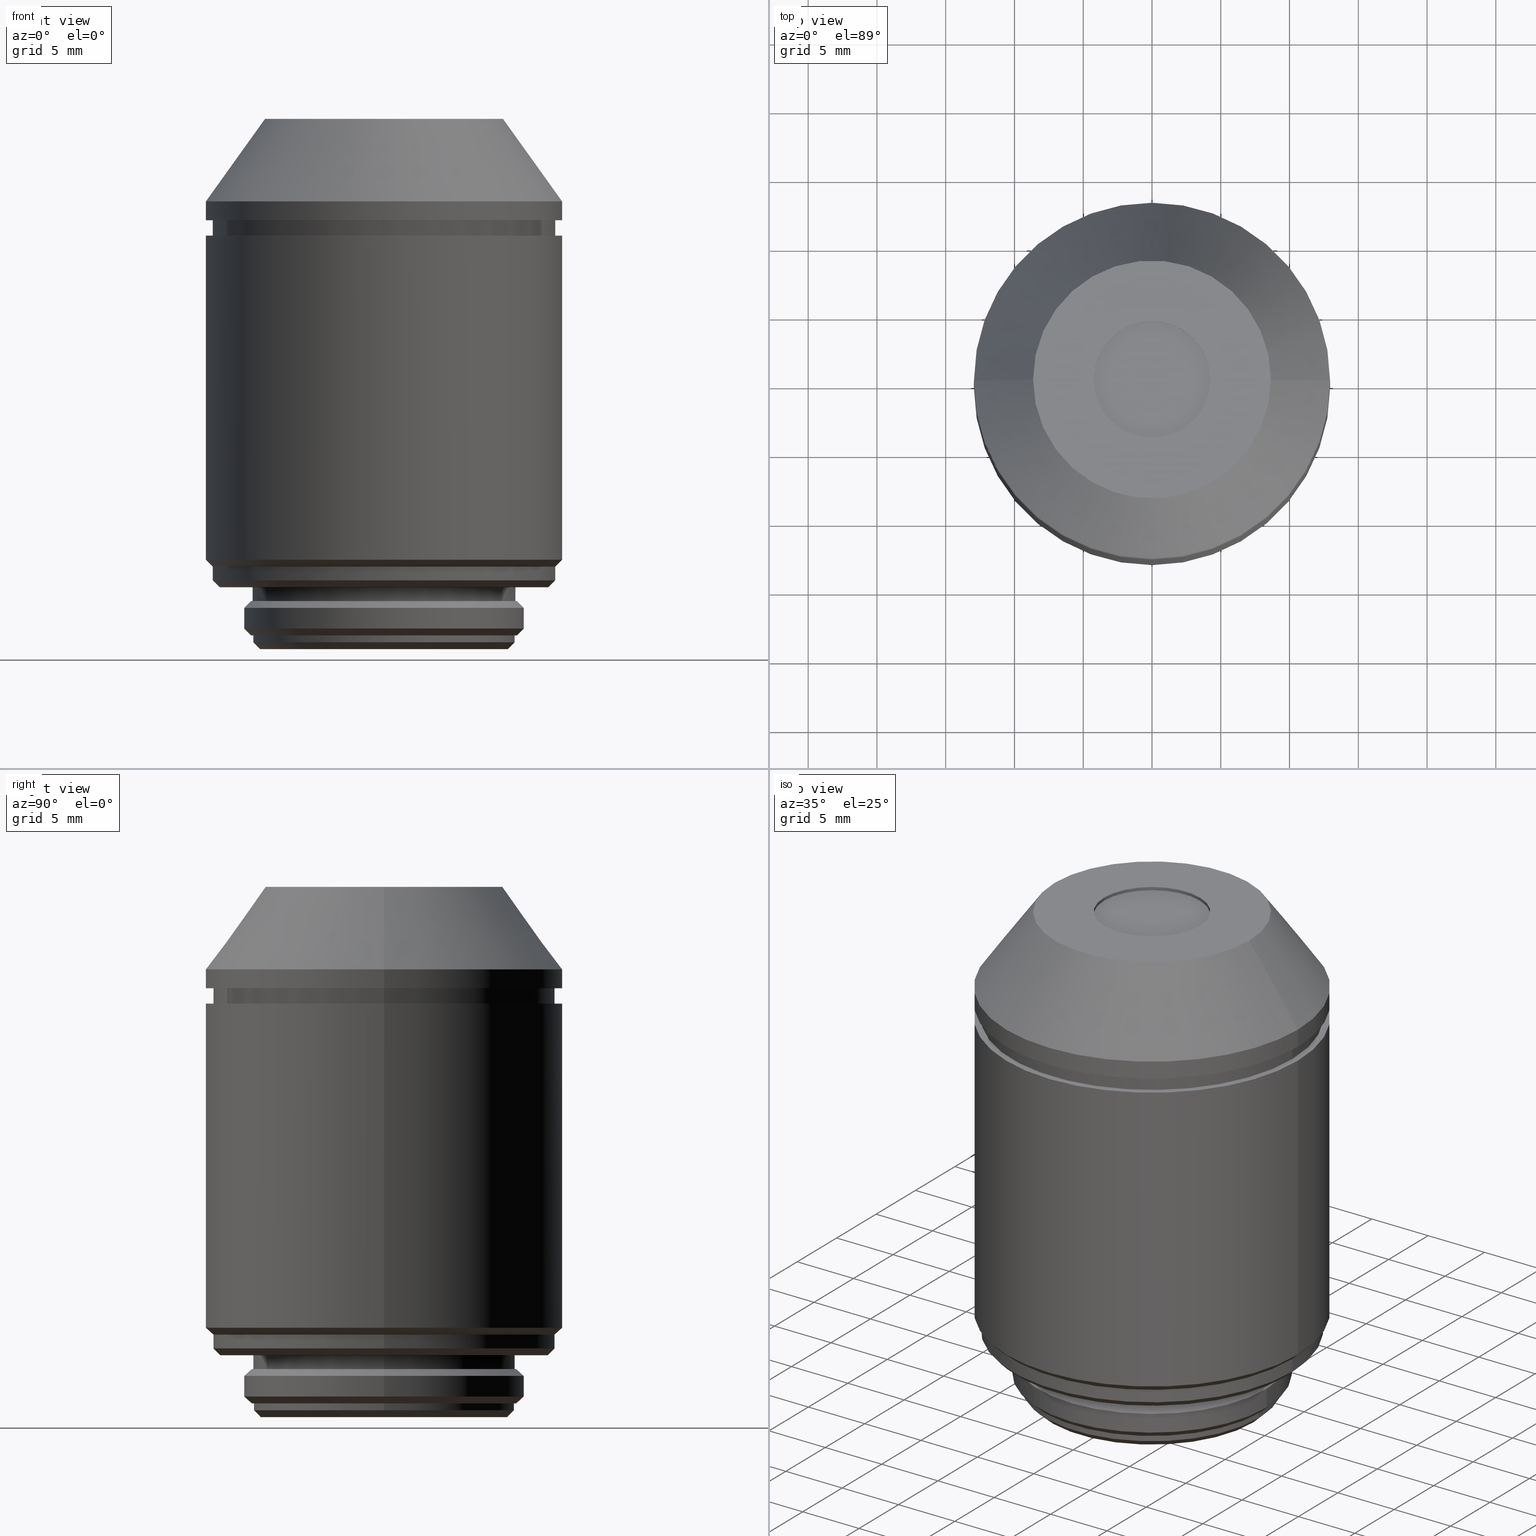
[diagram: canonical four-view strip — front | top / right | iso, engineering-drawing reading convention]
A machine part, canonical four-view strip (front | top / right | iso — engineering-drawing reading convention). The complete STEP part file that produces these views, byte-faithful:
ISO-10303-21;
HEADER;
FILE_DESCRIPTION (( 'STEP AP203' ),
    '1' );
FILE_NAME ('690079.step',
    '2025-04-14T08:44:51',
    ( 'MSI' ),
    ( '' ),
    'SwSTEP 2.0',
    'SolidWorks 2020',
    '' );
FILE_SCHEMA (( 'CONFIG_CONTROL_DESIGN' ));
ENDSEC;

DATA;
#1 = CIRCLE ( 'NONE', #604, 12.94999999999999929 ) ;
#2 = CARTESIAN_POINT ( 'NONE',  ( 12.94999999999999929, 0.000000000000000000, 30.57999999999999829 ) ) ;
#3 = FACE_OUTER_BOUND ( 'NONE', #829, .T. ) ;
#4 = AXIS2_PLACEMENT_3D ( 'NONE', #171, #841, #430 ) ;
#5 = EDGE_CURVE ( 'NONE', #44, #153, #878, .T. ) ;
#6 = ORIENTED_EDGE ( 'NONE', *, *, #1000, .F. ) ;
#7 = CARTESIAN_POINT ( 'NONE',  ( -9.660000000000001918, 0.000000000000000000, 2.889999999999997460 ) ) ;
#8 = PERSON_AND_ORGANIZATION ( #944, #1068 ) ;
#9 = DIRECTION ( 'NONE',  ( 0.000000000000000000, 0.000000000000000000, 1.000000000000000000 ) ) ;
#10 = VERTEX_POINT ( 'NONE', #2 ) ;
#11 = EDGE_CURVE ( 'NONE', #213, #153, #339, .T. ) ;
#12 = DIRECTION ( 'NONE',  ( -1.000000000000000000, 0.000000000000000000, 0.000000000000000000 ) ) ;
#13 = CARTESIAN_POINT ( 'NONE',  ( 4.250000000000000000, 0.000000000000000000, 37.94999999999999574 ) ) ;
#14 = DIRECTION ( 'NONE',  ( 0.000000000000000000, 0.000000000000000000, -1.000000000000000000 ) ) ;
#15 = EDGE_LOOP ( 'NONE', ( #744, #341 ) ) ;
#16 = DIRECTION ( 'NONE',  ( 0.000000000000000000, 0.000000000000000000, 1.000000000000000000 ) ) ;
#17 = VECTOR ( 'NONE', #25, 1000.000000000000000 ) ;
#18 = ADVANCED_FACE ( 'NONE', ( #560 ), #467, .T. ) ;
#19 = DIRECTION ( 'NONE',  ( -1.000000000000000000, 0.000000000000000000, 0.000000000000000000 ) ) ;
#20 = DIRECTION ( 'NONE',  ( -1.000000000000000000, 0.000000000000000000, 0.000000000000000000 ) ) ;
#21 = CIRCLE ( 'NONE', #769, 9.660000000000001918 ) ;
#22 = ORIENTED_EDGE ( 'NONE', *, *, #858, .F. ) ;
#23 = VECTOR ( 'NONE', #401, 1000.000000000000114 ) ;
#24 = CC_DESIGN_APPROVAL ( #1039, ( #627 ) ) ;
#25 = DIRECTION ( 'NONE',  ( 0.000000000000000000, 0.000000000000000000, 1.000000000000000000 ) ) ;
#26 = CARTESIAN_POINT ( 'NONE',  ( -4.250000000000000000, 5.204748896376249713E-16, 37.69999999999999574 ) ) ;
#27 = ORIENTED_EDGE ( 'NONE', *, *, #606, .T. ) ;
#28 = EDGE_CURVE ( 'NONE', #926, #668, #737, .T. ) ;
#29 = ORIENTED_EDGE ( 'NONE', *, *, #821, .T. ) ;
#30 = CARTESIAN_POINT ( 'NONE',  ( 0.000000000000000000, 7.250000000000000000, 37.94999999999999574 ) ) ;
#31 = EDGE_LOOP ( 'NONE', ( #629, #480, #810, #352 ) ) ;
#32 = ADVANCED_FACE ( 'NONE', ( #636 ), #53, .T. ) ;
#33 = EDGE_LOOP ( 'NONE', ( #775, #129, #601, #448 ) ) ;
#34 = LINE ( 'NONE', #112, #637 ) ;
#35 = VECTOR ( 'NONE', #201, 1000.000000000000000 ) ;
#36 = ORIENTED_EDGE ( 'NONE', *, *, #912, .F. ) ;
#37 = EDGE_LOOP ( 'NONE', ( #183, #517 ) ) ;
#38 = CC_DESIGN_PERSON_AND_ORGANIZATION_ASSIGNMENT ( #1002, #594, ( #507 ) ) ;
#39 = SHAPE_DEFINITION_REPRESENTATION ( #431, #348 ) ;
#40 = CARTESIAN_POINT ( 'NONE',  ( 0.000000000000000000, 0.000000000000000000, 4.389999999999997904 ) ) ;
#41 = EDGE_LOOP ( 'NONE', ( #1027, #999 ) ) ;
#42 = ADVANCED_FACE ( 'NONE', ( #382 ), #477, .T. ) ;
#43 = DIRECTION ( 'NONE',  ( -0.7071067811865439090, 8.659560562354889717E-17, 0.7071067811865512365 ) ) ;
#44 = VERTEX_POINT ( 'NONE', #122 ) ;
#45 = PERSON_AND_ORGANIZATION ( #944, #1068 ) ;
#46 = FACE_OUTER_BOUND ( 'NONE', #724, .T. ) ;
#47 = ADVANCED_FACE ( 'NONE', ( #46 ), #463, .T. ) ;
#48 = ORIENTED_EDGE ( 'NONE', *, *, #424, .F. ) ;
#49 = LINE ( 'NONE', #792, #718 ) ;
#50 = CIRCLE ( 'NONE', #529, 10.16000000000000014 ) ;
#51 = LINE ( 'NONE', #392, #766 ) ;
#52 = AXIS2_PLACEMENT_3D ( 'NONE', #85, #257, #676 ) ;
#53 = CONICAL_SURFACE ( 'NONE', #229, 12.44999999999999751, 0.7853981633974466137 ) ;
#54 = ORIENTED_EDGE ( 'NONE', *, *, #938, .F. ) ;
#55 = FACE_BOUND ( 'NONE', #965, .T. ) ;
#56 = DIRECTION ( 'NONE',  ( -0.000000000000000000, -0.000000000000000000, 1.000000000000000000 ) ) ;
#57 = DIRECTION ( 'NONE',  ( 0.000000000000000000, 0.000000000000000000, -1.000000000000000000 ) ) ;
#58 = ORIENTED_EDGE ( 'NONE', *, *, #28, .F. ) ;
#59 = CARTESIAN_POINT ( 'NONE',  ( -10.16000000000000014, 1.244241147933710864E-15, 0.8900000000000034550 ) ) ;
#60 = EDGE_CURVE ( 'NONE', #872, #532, #220, .T. ) ;
#61 = LINE ( 'NONE', #580, #833 ) ;
#62 = DIRECTION ( 'NONE',  ( 1.000000000000000000, 0.000000000000000000, 0.000000000000000000 ) ) ;
#63 = EDGE_LOOP ( 'NONE', ( #843, #746, #1069, #521 ) ) ;
#64 = CIRCLE ( 'NONE', #904, 9.500000000000000000 ) ;
#65 = PLANE ( 'NONE',  #267 ) ;
#66 = CARTESIAN_POINT ( 'NONE',  ( 0.000000000000000000, 12.44999999999999929, 30.57999999999999829 ) ) ;
#67 = LINE ( 'NONE', #501, #370 ) ;
#68 = AXIS2_PLACEMENT_3D ( 'NONE', #780, #237, #970 ) ;
#69 = DIRECTION ( 'NONE',  ( 1.000000000000000000, 0.000000000000000000, 0.000000000000000000 ) ) ;
#70 = CIRCLE ( 'NONE', #690, 9.550000000000000711 ) ;
#71 = AXIS2_PLACEMENT_3D ( 'NONE', #519, #929, #19 ) ;
#72 = VERTEX_POINT ( 'NONE', #962 ) ;
#73 = CARTESIAN_POINT ( 'NONE',  ( 0.000000000000000000, 0.000000000000000000, 0.8900000000000034550 ) ) ;
#74 = DIRECTION ( 'NONE',  ( 0.000000000000000000, 0.000000000000000000, 1.000000000000000000 ) ) ;
#75 = AXIS2_PLACEMENT_3D ( 'NONE', #301, #56, #796 ) ;
#76 = CARTESIAN_POINT ( 'NONE',  ( 0.000000000000000000, 0.000000000000000000, 37.94999999999999574 ) ) ;
#77 = EDGE_CURVE ( 'NONE', #668, #985, #216, .T. ) ;
#78 = CARTESIAN_POINT ( 'NONE',  ( -9.500000000000000000, 0.000000000000000000, 0.3899999999999977929 ) ) ;
#79 = ORIENTED_EDGE ( 'NONE', *, *, #1057, .F. ) ;
#80 = FACE_OUTER_BOUND ( 'NONE', #86, .T. ) ;
#81 = DIRECTION ( 'NONE',  ( 0.000000000000000000, 0.000000000000000000, 1.000000000000000000 ) ) ;
#82 = CARTESIAN_POINT ( 'NONE',  ( 9.000000000000007105, 0.000000000000000000, -0.6100000000000022071 ) ) ;
#83 = EDGE_CURVE ( 'NONE', #861, #148, #693, .T. ) ;
#84 = ORIENTED_EDGE ( 'NONE', *, *, #387, .F. ) ;
#85 = CARTESIAN_POINT ( 'NONE',  ( 0.000000000000000000, 0.000000000000000000, 37.94999999999999574 ) ) ;
#86 = EDGE_LOOP ( 'NONE', ( #400, #958 ) ) ;
#87 = DIRECTION ( 'NONE',  ( 1.000000000000000000, 0.000000000000000000, 0.000000000000000000 ) ) ;
#88 = AXIS2_PLACEMENT_3D ( 'NONE', #730, #802, #825 ) ;
#89 = AXIS2_PLACEMENT_3D ( 'NONE', #350, #916, #330 ) ;
#90 = FACE_OUTER_BOUND ( 'NONE', #557, .T. ) ;
#91 = EDGE_CURVE ( 'NONE', #980, #532, #727, .T. ) ;
#92 = VERTEX_POINT ( 'NONE', #212 ) ;
#93 = DIRECTION ( 'NONE',  ( 0.000000000000000000, 0.000000000000000000, -1.000000000000000000 ) ) ;
#94 = CARTESIAN_POINT ( 'NONE',  ( 9.500000000000000000, 1.163414459189985485E-15, -0.1100000000000052741 ) ) ;
#95 = CYLINDRICAL_SURFACE ( 'NONE', #107, 4.250000000000000000 ) ;
#96 = VERTEX_POINT ( 'NONE', #723 ) ;
#97 = ADVANCED_FACE ( 'NONE', ( #128 ), #386, .T. ) ;
#98 = DIRECTION ( 'NONE',  ( 0.000000000000000000, 0.000000000000000000, 1.000000000000000000 ) ) ;
#99 = DIRECTION ( 'NONE',  ( 0.000000000000000000, 0.000000000000000000, 1.000000000000000000 ) ) ;
#100 = DIRECTION ( 'NONE',  ( 1.000000000000000000, 0.000000000000000000, 0.000000000000000000 ) ) ;
#101 = DIRECTION ( 'NONE',  ( 0.000000000000000000, 0.000000000000000000, -1.000000000000000000 ) ) ;
#102 = CIRCLE ( 'NONE', #716, 9.550000000000000711 ) ;
#103 =( NAMED_UNIT ( * ) SI_UNIT ( $, .STERADIAN. ) SOLID_ANGLE_UNIT ( ) );
#104 = VERTEX_POINT ( 'NONE', #793 ) ;
#105 = CONICAL_SURFACE ( 'NONE', #873, 9.660000000000001918, 0.7853981633974482790 ) ;
#106 = ORIENTED_EDGE ( 'NONE', *, *, #486, .T. ) ;
#107 = AXIS2_PLACEMENT_3D ( 'NONE', #846, #925, #262 ) ;
#108 = PLANE ( 'NONE',  #617 ) ;
#109 = ORIENTED_EDGE ( 'NONE', *, *, #28, .T. ) ;
#110 = EDGE_CURVE ( 'NONE', #148, #942, #1050, .T. ) ;
#111 = EDGE_LOOP ( 'NONE', ( #626, #542, #6, #199 ) ) ;
#112 = CARTESIAN_POINT ( 'NONE',  ( -12.94999999999999929, 1.585917604895822220E-15, 0.000000000000000000 ) ) ;
#113 = DIRECTION ( 'NONE',  ( 0.000000000000000000, 0.000000000000000000, 1.000000000000000000 ) ) ;
#114 = ORIENTED_EDGE ( 'NONE', *, *, #1046, .F. ) ;
#115 = ORIENTED_EDGE ( 'NONE', *, *, #984, .F. ) ;
#116 = PERSON_AND_ORGANIZATION ( #944, #1068 ) ;
#117 = DIRECTION ( 'NONE',  ( -1.000000000000000000, 0.000000000000000000, 0.000000000000000000 ) ) ;
#118 = ORIENTED_EDGE ( 'NONE', *, *, #726, .F. ) ;
#119 = AXIS2_PLACEMENT_3D ( 'NONE', #150, #494, #402 ) ;
#120 = ADVANCED_FACE ( 'NONE', ( #882 ), #541, .T. ) ;
#121 = AXIS2_PLACEMENT_3D ( 'NONE', #322, #728, #317 ) ;
#122 = CARTESIAN_POINT ( 'NONE',  ( -12.94999999999999929, 1.585917604895822220E-15, 29.46000000000000085 ) ) ;
#123 = VECTOR ( 'NONE', #198, 1000.000000000000000 ) ;
#124 = ORIENTED_EDGE ( 'NONE', *, *, #410, .F. ) ;
#125 = CARTESIAN_POINT ( 'NONE',  ( 0.000000000000000000, 0.000000000000000000, 2.889999999999997460 ) ) ;
#126 = EDGE_CURVE ( 'NONE', #861, #213, #51, .T. ) ;
#127 = PERSON_AND_ORGANIZATION ( #944, #1068 ) ;
#128 = FACE_OUTER_BOUND ( 'NONE', #455, .T. ) ;
#129 = ORIENTED_EDGE ( 'NONE', *, *, #553, .T. ) ;
#130 = DIRECTION ( 'NONE',  ( 0.000000000000000000, 0.000000000000000000, 1.000000000000000000 ) ) ;
#131 = CARTESIAN_POINT ( 'NONE',  ( 0.000000000000000000, 0.000000000000000000, 0.000000000000000000 ) ) ;
#132 = EDGE_CURVE ( 'NONE', #763, #464, #814, .T. ) ;
#133 = VECTOR ( 'NONE', #113, 1000.000000000000000 ) ;
#134 = EDGE_LOOP ( 'NONE', ( #445, #800 ) ) ;
#135 = CARTESIAN_POINT ( 'NONE',  ( 9.500000000000000000, 1.163414459189985485E-15, 0.3899999999999977929 ) ) ;
#136 = AXIS2_PLACEMENT_3D ( 'NONE', #397, #565, #325 ) ;
#137 = CARTESIAN_POINT ( 'NONE',  ( 0.000000000000000000, 0.000000000000000000, 0.000000000000000000 ) ) ;
#138 = AXIS2_PLACEMENT_3D ( 'NONE', #1059, #823, #1078 ) ;
#139 = CARTESIAN_POINT ( 'NONE',  ( 0.000000000000000000, 0.000000000000000000, 5.389999999999998792 ) ) ;
#140 = CARTESIAN_POINT ( 'NONE',  ( 0.000000000000000000, 0.000000000000000000, 2.889999999999997460 ) ) ;
#141 = EDGE_CURVE ( 'NONE', #779, #148, #972, .T. ) ;
#142 = ORIENTED_EDGE ( 'NONE', *, *, #707, .F. ) ;
#143 = FACE_OUTER_BOUND ( 'NONE', #700, .T. ) ;
#144 = FACE_OUTER_BOUND ( 'NONE', #33, .T. ) ;
#145 = DIRECTION ( 'NONE',  ( 0.7071067811865474617, 8.659560562354932858E-17, -0.7071067811865474617 ) ) ;
#146 = CYLINDRICAL_SURFACE ( 'NONE', #160, 10.16000000000000014 ) ;
#147 = CC_DESIGN_PERSON_AND_ORGANIZATION_ASSIGNMENT ( #540, #868, ( #299 ) ) ;
#148 = VERTEX_POINT ( 'NONE', #956 ) ;
#149 = CARTESIAN_POINT ( 'NONE',  ( 5.450000000000000178, 0.000000000000000000, -0.6100000000000022071 ) ) ;
#150 = CARTESIAN_POINT ( 'NONE',  ( 0.000000000000000000, 0.000000000000000000, 0.3899999999999977929 ) ) ;
#151 = DIRECTION ( 'NONE',  ( -1.000000000000000000, 0.000000000000000000, 0.000000000000000000 ) ) ;
#152 = DIRECTION ( 'NONE',  ( 0.000000000000000000, 0.000000000000000000, 1.000000000000000000 ) ) ;
#153 = VERTEX_POINT ( 'NONE', #205 ) ;
#154 = CARTESIAN_POINT ( 'NONE',  ( 9.660000000000001918, 1.213624977955027077E-15, 2.889999999999997460 ) ) ;
#155 = CARTESIAN_POINT ( 'NONE',  ( 0.000000000000000000, 0.000000000000000000, 0.000000000000000000 ) ) ;
#156 = EDGE_CURVE ( 'NONE', #616, #763, #544, .T. ) ;
#157 = DIRECTION ( 'NONE',  ( 0.000000000000000000, 0.000000000000000000, 1.000000000000000000 ) ) ;
#158 = AXIS2_PLACEMENT_3D ( 'NONE', #179, #98, #711 ) ;
#159 = FACE_BOUND ( 'NONE', #611, .T. ) ;
#160 = AXIS2_PLACEMENT_3D ( 'NONE', #900, #166, #658 ) ;
#161 = ORIENTED_EDGE ( 'NONE', *, *, #918, .T. ) ;
#162 = CARTESIAN_POINT ( 'NONE',  ( 0.000000000000000000, 0.000000000000000000, 37.94999999999999574 ) ) ;
#163 = FACE_OUTER_BOUND ( 'NONE', #664, .T. ) ;
#164 = EDGE_CURVE ( 'NONE', #942, #213, #992, .T. ) ;
#165 = CARTESIAN_POINT ( 'NONE',  ( -12.94999999999999929, 1.585917604895820050E-15, 0.000000000000000000 ) ) ;
#166 = DIRECTION ( 'NONE',  ( 0.000000000000000000, 0.000000000000000000, 1.000000000000000000 ) ) ;
#167 = ORIENTED_EDGE ( 'NONE', *, *, #684, .T. ) ;
#168 = DIRECTION ( 'NONE',  ( -1.000000000000000000, 0.000000000000000000, 0.000000000000000000 ) ) ;
#169 = DIRECTION ( 'NONE',  ( 0.000000000000000000, 0.000000000000000000, 1.000000000000000000 ) ) ;
#170 = EDGE_CURVE ( 'NONE', #1082, #532, #64, .T. ) ;
#171 = CARTESIAN_POINT ( 'NONE',  ( 0.000000000000000000, 0.000000000000000000, 2.889999999999997460 ) ) ;
#172 = ORIENTED_EDGE ( 'NONE', *, *, #895, .F. ) ;
#173 = FACE_OUTER_BOUND ( 'NONE', #537, .T. ) ;
#174 = APPROVAL_ROLE ( '' ) ;
#175 = CIRCLE ( 'NONE', #314, 12.94999999999999929 ) ;
#176 = EDGE_CURVE ( 'NONE', #729, #551, #321, .T. ) ;
#177 = DIRECTION ( 'NONE',  ( 0.000000000000000000, 0.000000000000000000, -1.000000000000000000 ) ) ;
#178 = ORIENTED_EDGE ( 'NONE', *, *, #110, .F. ) ;
#179 = CARTESIAN_POINT ( 'NONE',  ( 0.000000000000000000, 0.000000000000000000, 31.94999999999999929 ) ) ;
#180 = CARTESIAN_POINT ( 'NONE',  ( -8.650000000000000355, 0.000000000000000000, 37.94999999999999574 ) ) ;
#181 = CARTESIAN_POINT ( 'NONE',  ( 0.000000000000000000, 0.000000000000000000, 0.8900000000000034550 ) ) ;
#182 = ADVANCED_FACE ( 'NONE', ( #748 ), #599, .T. ) ;
#183 = ORIENTED_EDGE ( 'NONE', *, *, #707, .T. ) ;
#184 = FACE_BOUND ( 'NONE', #41, .T. ) ;
#185 = ORIENTED_EDGE ( 'NONE', *, *, #156, .F. ) ;
#186 = EDGE_LOOP ( 'NONE', ( #777, #172 ) ) ;
#187 = AXIS2_PLACEMENT_3D ( 'NONE', #764, #16, #527 ) ;
#188 = EDGE_CURVE ( 'NONE', #332, #104, #471, .T. ) ;
#189 = CARTESIAN_POINT ( 'NONE',  ( 0.000000000000000000, 0.000000000000000000, 3.889999999999997460 ) ) ;
#190 = ORIENTED_EDGE ( 'NONE', *, *, #235, .F. ) ;
#191 = AXIS2_PLACEMENT_3D ( 'NONE', #1075, #660, #584 ) ;
#192 = EDGE_LOOP ( 'NONE', ( #865, #883, #460, #474 ) ) ;
#193 = CIRCLE ( 'NONE', #357, 10.16000000000000014 ) ;
#194 = APPROVAL_PERSON_ORGANIZATION ( #300, #416, #555 ) ;
#195 = CYLINDRICAL_SURFACE ( 'NONE', #1065, 9.550000000000000711 ) ;
#196 = EDGE_CURVE ( 'NONE', #701, #464, #61, .T. ) ;
#197 = APPROVAL_DATE_TIME ( #381, #1039 ) ;
#198 = DIRECTION ( 'NONE',  ( 0.000000000000000000, 0.000000000000000000, 1.000000000000000000 ) ) ;
#199 = ORIENTED_EDGE ( 'NONE', *, *, #126, .F. ) ;
#200 = PERSON_AND_ORGANIZATION_ROLE ( 'creator' ) ;
#201 = DIRECTION ( 'NONE',  ( -0.7071067811865463515, 8.659560562354918067E-17, 0.7071067811865487940 ) ) ;
#202 = ORIENTED_EDGE ( 'NONE', *, *, #141, .T. ) ;
#203 = DATE_AND_TIME ( #641, #391 ) ;
#204 = AXIS2_PLACEMENT_3D ( 'NONE', #398, #295, #717 ) ;
#205 = CARTESIAN_POINT ( 'NONE',  ( 12.94999999999999929, 0.000000000000000000, 29.46000000000000085 ) ) ;
#206 = ADVANCED_FACE ( 'NONE', ( #666 ), #227, .F. ) ;
#207 = ORIENTED_EDGE ( 'NONE', *, *, #196, .T. ) ;
#208 = FACE_OUTER_BOUND ( 'NONE', #511, .T. ) ;
#209 = AXIS2_PLACEMENT_3D ( 'NONE', #579, #558, #745 ) ;
#210 = CIRCLE ( 'NONE', #476, 11.94999999999999929 ) ;
#211 = CIRCLE ( 'NONE', #820, 5.450000000000000178 ) ;
#212 = CARTESIAN_POINT ( 'NONE',  ( 9.500000000000000000, 1.163414459189985485E-15, 0.3899999999999977929 ) ) ;
#213 = VERTEX_POINT ( 'NONE', #913 ) ;
#214 = ADVANCED_FACE ( 'NONE', ( #496 ), #569, .F. ) ;
#215 = COORDINATED_UNIVERSAL_TIME_OFFSET ( 8, 0, .AHEAD. ) ;
#216 = LINE ( 'NONE', #886, #1021 ) ;
#217 = ORIENTED_EDGE ( 'NONE', *, *, #1022, .T. ) ;
#218 = DIRECTION ( 'NONE',  ( 1.000000000000000000, 0.000000000000000000, 0.000000000000000000 ) ) ;
#219 = EDGE_CURVE ( 'NONE', #949, #1030, #67, .T. ) ;
#220 = LINE ( 'NONE', #879, #840 ) ;
#221 = VECTOR ( 'NONE', #145, 1000.000000000000114 ) ;
#222 = DIRECTION ( 'NONE',  ( -0.5825189414280079747, 0.000000000000000000, -0.8128171275739660695 ) ) ;
#223 = ORIENTED_EDGE ( 'NONE', *, *, #918, .F. ) ;
#224 = LINE ( 'NONE', #59, #23 ) ;
#225 = DIRECTION ( 'NONE',  ( 0.000000000000000000, 0.000000000000000000, 1.000000000000000000 ) ) ;
#226 = CONICAL_SURFACE ( 'NONE', #4, 9.660000000000001918, 0.7853981633974482790 ) ;
#227 = CYLINDRICAL_SURFACE ( 'NONE', #940, 5.450000000000000178 ) ;
#228 = FACE_OUTER_BOUND ( 'NONE', #37, .T. ) ;
#229 = AXIS2_PLACEMENT_3D ( 'NONE', #40, #790, #874 ) ;
#230 = EDGE_LOOP ( 'NONE', ( #734, #109 ) ) ;
#231 = CARTESIAN_POINT ( 'NONE',  ( 0.000000000000000000, 0.000000000000000000, 37.94999999999999574 ) ) ;
#232 = CYLINDRICAL_SURFACE ( 'NONE', #1085, 10.16000000000000014 ) ;
#233 = DIRECTION ( 'NONE',  ( -0.000000000000000000, -0.000000000000000000, 1.000000000000000000 ) ) ;
#234 = FACE_OUTER_BOUND ( 'NONE', #867, .T. ) ;
#235 = EDGE_CURVE ( 'NONE', #148, #861, #884, .T. ) ;
#236 = ORIENTED_EDGE ( 'NONE', *, *, #1063, .T. ) ;
#237 = DIRECTION ( 'NONE',  ( -0.000000000000000000, -0.000000000000000000, 1.000000000000000000 ) ) ;
#238 = CARTESIAN_POINT ( 'NONE',  ( 10.16000000000000014, 0.000000000000000000, 0.000000000000000000 ) ) ;
#239 = CARTESIAN_POINT ( 'NONE',  ( 9.660000000000001918, 1.183008807976343488E-15, 2.889999999999997460 ) ) ;
#240 = CARTESIAN_POINT ( 'NONE',  ( -12.94999999999999929, 1.585917604895822220E-15, 5.889999999999999680 ) ) ;
#241 = ORIENTED_EDGE ( 'NONE', *, *, #410, .T. ) ;
#242 = AXIS2_PLACEMENT_3D ( 'NONE', #347, #523, #443 ) ;
#243 = DIRECTION ( 'NONE',  ( 0.000000000000000000, 0.000000000000000000, 1.000000000000000000 ) ) ;
#244 = ADVANCED_FACE ( 'NONE', ( #421 ), #899, .F. ) ;
#245 = DIRECTION ( 'NONE',  ( 0.000000000000000000, 0.000000000000000000, 1.000000000000000000 ) ) ;
#246 = CARTESIAN_POINT ( 'NONE',  ( 0.000000000000000000, 0.000000000000000000, 5.389999999999998792 ) ) ;
#247 = CONICAL_SURFACE ( 'NONE', #545, 12.44999999999999751, 0.7853981633974466137 ) ;
#248 = DIRECTION ( 'NONE',  ( 0.000000000000000000, 0.000000000000000000, 1.000000000000000000 ) ) ;
#249 = CIRCLE ( 'NONE', #495, 12.44999999999999751 ) ;
#250 = AXIS2_PLACEMENT_3D ( 'NONE', #610, #272, #1020 ) ;
#251 = EDGE_LOOP ( 'NONE', ( #58, #768, #436, #1037 ) ) ;
#252 = FACE_OUTER_BOUND ( 'NONE', #364, .T. ) ;
#253 = ORIENTED_EDGE ( 'NONE', *, *, #444, .T. ) ;
#254 = CARTESIAN_POINT ( 'NONE',  ( 0.000000000000000000, 0.000000000000000000, 0.000000000000000000 ) ) ;
#255 = DIRECTION ( 'NONE',  ( -0.000000000000000000, -0.000000000000000000, -1.000000000000000000 ) ) ;
#256 = DIRECTION ( 'NONE',  ( 1.000000000000000000, 0.000000000000000000, 0.000000000000000000 ) ) ;
#257 = DIRECTION ( 'NONE',  ( 0.000000000000000000, 0.000000000000000000, 1.000000000000000000 ) ) ;
#258 = ORIENTED_EDGE ( 'NONE', *, *, #235, .T. ) ;
#259 = DIRECTION ( 'NONE',  ( 1.000000000000000000, 0.000000000000000000, 0.000000000000000000 ) ) ;
#260 = EDGE_CURVE ( 'NONE', #292, #1031, #649, .T. ) ;
#261 = DIRECTION ( 'NONE',  ( 0.000000000000000000, 0.000000000000000000, 1.000000000000000000 ) ) ;
#262 = DIRECTION ( 'NONE',  ( 1.000000000000000000, 0.000000000000000000, 0.000000000000000000 ) ) ;
#263 = CIRCLE ( 'NONE', #405, 9.659999999999998366 ) ;
#264 = ORIENTED_EDGE ( 'NONE', *, *, #91, .F. ) ;
#265 = DIRECTION ( 'NONE',  ( 0.000000000000000000, 0.000000000000000000, 1.000000000000000000 ) ) ;
#266 = DIRECTION ( 'NONE',  ( 0.000000000000000000, 0.000000000000000000, 1.000000000000000000 ) ) ;
#267 = AXIS2_PLACEMENT_3D ( 'NONE', #892, #408, #986 ) ;
#268 = AXIS2_PLACEMENT_3D ( 'NONE', #340, #14, #20 ) ;
#269 = DIRECTION ( 'NONE',  ( -0.000000000000000000, -0.000000000000000000, 1.000000000000000000 ) ) ;
#270 = VERTEX_POINT ( 'NONE', #429 ) ;
#271 = DIRECTION ( 'NONE',  ( 0.000000000000000000, 0.000000000000000000, 1.000000000000000000 ) ) ;
#272 = DIRECTION ( 'NONE',  ( -0.000000000000000000, -0.000000000000000000, 1.000000000000000000 ) ) ;
#273 = ORIENTED_EDGE ( 'NONE', *, *, #759, .F. ) ;
#274 = EDGE_CURVE ( 'NONE', #969, #1082, #741, .T. ) ;
#275 = ORIENTED_EDGE ( 'NONE', *, *, #678, .T. ) ;
#276 = PLANE ( 'NONE',  #851 ) ;
#277 = CARTESIAN_POINT ( 'NONE',  ( 0.000000000000000000, 0.000000000000000000, 29.46000000000000085 ) ) ;
#278 = ORIENTED_EDGE ( 'NONE', *, *, #966, .T. ) ;
#279 = ADVANCED_FACE ( 'NONE', ( #575 ), #673, .T. ) ;
#280 = AXIS2_PLACEMENT_3D ( 'NONE', #993, #832, #1083 ) ;
#281 = CARTESIAN_POINT ( 'NONE',  ( 0.000000000000000000, 0.000000000000000000, 0.3899999999999977929 ) ) ;
#282 = DATE_AND_TIME ( #789, #947 ) ;
#283 = ORIENTED_EDGE ( 'NONE', *, *, #196, .F. ) ;
#284 = CIRCLE ( 'NONE', #888, 4.250000000000000000 ) ;
#285 = VECTOR ( 'NONE', #222, 1000.000000000000227 ) ;
#286 = ORIENTED_EDGE ( 'NONE', *, *, #549, .T. ) ;
#287 = DIRECTION ( 'NONE',  ( 1.000000000000000000, 0.000000000000000000, 0.000000000000000000 ) ) ;
#288 = ORIENTED_EDGE ( 'NONE', *, *, #363, .T. ) ;
#289 = DATE_AND_TIME ( #785, #548 ) ;
#290 = DIRECTION ( 'NONE',  ( -0.000000000000000000, -0.000000000000000000, 1.000000000000000000 ) ) ;
#291 = ADVANCED_FACE ( 'NONE', ( #508 ), #1058, .T. ) ;
#292 = VERTEX_POINT ( 'NONE', #1064 ) ;
#293 = CARTESIAN_POINT ( 'NONE',  ( -9.500000000000000000, 0.000000000000000000, -0.1100000000000052741 ) ) ;
#294 = VECTOR ( 'NONE', #808, 1000.000000000000000 ) ;
#295 = DIRECTION ( 'NONE',  ( 0.000000000000000000, 0.000000000000000000, 1.000000000000000000 ) ) ;
#296 = ORIENTED_EDGE ( 'NONE', *, *, #866, .F. ) ;
#297 = CIRCLE ( 'NONE', #209, 4.250000000000000000 ) ;
#298 = VECTOR ( 'NONE', #562, 1000.000000000000000 ) ;
#299 = PRODUCT_DEFINITION_FORMATION_WITH_SPECIFIED_SOURCE ( '�κ�', '', #507, .NOT_KNOWN. ) ;
#300 = PERSON_AND_ORGANIZATION ( #944, #1068 ) ;
#301 = CARTESIAN_POINT ( 'NONE',  ( 0.000000000000000000, 0.000000000000000000, 37.94999999999999574 ) ) ;
#302 = ORIENTED_EDGE ( 'NONE', *, *, #274, .T. ) ;
#303 = DIRECTION ( 'NONE',  ( -0.000000000000000000, -0.000000000000000000, 1.000000000000000000 ) ) ;
#304 = ADVANCED_FACE ( 'NONE', ( #315 ), #385, .T. ) ;
#305 = DIRECTION ( 'NONE',  ( 0.000000000000000000, 0.000000000000000000, -1.000000000000000000 ) ) ;
#306 = EDGE_LOOP ( 'NONE', ( #1003, #379, #236, #622 ) ) ;
#307 = DIRECTION ( 'NONE',  ( -0.000000000000000000, -0.000000000000000000, 1.000000000000000000 ) ) ;
#308 = CARTESIAN_POINT ( 'NONE',  ( 0.000000000000000000, 0.000000000000000000, 0.3899999999999977929 ) ) ;
#309 = AXIS2_PLACEMENT_3D ( 'NONE', #139, #290, #287 ) ;
#310 = DIRECTION ( 'NONE',  ( -1.000000000000000000, 0.000000000000000000, 0.000000000000000000 ) ) ;
#311 = ORIENTED_EDGE ( 'NONE', *, *, #1052, .T. ) ;
#312 = DIRECTION ( 'NONE',  ( 1.000000000000000000, 0.000000000000000000, 0.000000000000000000 ) ) ;
#313 = CIRCLE ( 'NONE', #158, 12.94999999999999929 ) ;
#314 = AXIS2_PLACEMENT_3D ( 'NONE', #570, #605, #674 ) ;
#315 = FACE_OUTER_BOUND ( 'NONE', #251, .T. ) ;
#316 = ADVANCED_FACE ( 'NONE', ( #535, #184 ), #108, .T. ) ;
#317 = DIRECTION ( 'NONE',  ( -1.000000000000000000, 0.000000000000000000, 0.000000000000000000 ) ) ;
#318 = ORIENTED_EDGE ( 'NONE', *, *, #720, .T. ) ;
#319 = DIRECTION ( 'NONE',  ( 1.000000000000000000, 0.000000000000000000, 0.000000000000000000 ) ) ;
#320 = DIRECTION ( 'NONE',  ( 0.000000000000000000, 0.000000000000000000, 1.000000000000000000 ) ) ;
#321 = LINE ( 'NONE', #165, #294 ) ;
#322 = CARTESIAN_POINT ( 'NONE',  ( 0.000000000000000000, 0.000000000000000000, -0.6100000000000022071 ) ) ;
#323 = EDGE_CURVE ( 'NONE', #668, #926, #263, .T. ) ;
#324 = ORIENTED_EDGE ( 'NONE', *, *, #895, .T. ) ;
#325 = DIRECTION ( 'NONE',  ( 1.000000000000000000, 0.000000000000000000, 0.000000000000000000 ) ) ;
#326 = CARTESIAN_POINT ( 'NONE',  ( 0.000000000000000000, 0.000000000000000000, 31.94999999999999929 ) ) ;
#327 = CARTESIAN_POINT ( 'NONE',  ( -12.44999999999999751, 1.524685264938454448E-15, 4.389999999999997904 ) ) ;
#328 = AXIS2_PLACEMENT_3D ( 'NONE', #30, #683, #945 ) ;
#329 = EDGE_LOOP ( 'NONE', ( #275, #207, #366, #995 ) ) ;
#330 = DIRECTION ( 'NONE',  ( 1.000000000000000000, 0.000000000000000000, 0.000000000000000000 ) ) ;
#331 = EDGE_CURVE ( 'NONE', #419, #332, #695, .T. ) ;
#332 = VERTEX_POINT ( 'NONE', #361 ) ;
#333 = AXIS2_PLACEMENT_3D ( 'NONE', #137, #74, #648 ) ;
#334 = DIRECTION ( 'NONE',  ( 0.000000000000000000, 0.000000000000000000, 1.000000000000000000 ) ) ;
#335 = CIRCLE ( 'NONE', #68, 5.450000000000000178 ) ;
#336 = CARTESIAN_POINT ( 'NONE',  ( 0.000000000000000000, 0.000000000000000000, 0.000000000000000000 ) ) ;
#337 = AXIS2_PLACEMENT_3D ( 'NONE', #595, #435, #767 ) ;
#338 = AXIS2_PLACEMENT_3D ( 'NONE', #924, #1008, #256 ) ;
#339 = LINE ( 'NONE', #675, #123 ) ;
#340 = CARTESIAN_POINT ( 'NONE',  ( 0.000000000000000000, 0.000000000000000000, 31.94999999999999929 ) ) ;
#341 = ORIENTED_EDGE ( 'NONE', *, *, #966, .F. ) ;
#342 = EDGE_CURVE ( 'NONE', #92, #872, #685, .T. ) ;
#343 = DIRECTION ( 'NONE',  ( 0.000000000000000000, 0.000000000000000000, 1.000000000000000000 ) ) ;
#344 = APPROVAL_STATUS ( 'not_yet_approved' ) ;
#345 = DIRECTION ( 'NONE',  ( 0.000000000000000000, 0.000000000000000000, -1.000000000000000000 ) ) ;
#346 = ORIENTED_EDGE ( 'NONE', *, *, #522, .T. ) ;
#347 = CARTESIAN_POINT ( 'NONE',  ( 0.000000000000000000, 0.000000000000000000, -0.1100000000000052741 ) ) ;
#348 = ADVANCED_BREP_SHAPE_REPRESENTATION ( '690079', ( #466, #722 ), #497 ) ;
#349 =( NAMED_UNIT ( * ) PLANE_ANGLE_UNIT ( ) SI_UNIT ( $, .RADIAN. ) );
#350 = CARTESIAN_POINT ( 'NONE',  ( 0.000000000000000000, 0.000000000000000000, 30.57999999999999829 ) ) ;
#351 = AXIS2_PLACEMENT_3D ( 'NONE', #488, #81, #732 ) ;
#352 = ORIENTED_EDGE ( 'NONE', *, *, #219, .F. ) ;
#353 = DIRECTION ( 'NONE',  ( 0.000000000000000000, 0.000000000000000000, -1.000000000000000000 ) ) ;
#354 = CARTESIAN_POINT ( 'NONE',  ( 0.000000000000000000, 0.000000000000000000, 30.57999999999999829 ) ) ;
#355 = VECTOR ( 'NONE', #481, 1000.000000000000000 ) ;
#356 = EDGE_CURVE ( 'NONE', #72, #1074, #512, .T. ) ;
#357 = AXIS2_PLACEMENT_3D ( 'NONE', #590, #177, #505 ) ;
#358 = DIRECTION ( 'NONE',  ( -0.000000000000000000, -0.000000000000000000, 1.000000000000000000 ) ) ;
#359 = CC_DESIGN_APPROVAL ( #416, ( #998 ) ) ;
#360 = ORIENTED_EDGE ( 'NONE', *, *, #141, .F. ) ;
#361 = CARTESIAN_POINT ( 'NONE',  ( 12.44999999999999929, 0.000000000000000000, 30.57999999999999829 ) ) ;
#362 = ORIENTED_EDGE ( 'NONE', *, *, #714, .T. ) ;
#363 = EDGE_CURVE ( 'NONE', #949, #805, #634, .T. ) ;
#364 = EDGE_LOOP ( 'NONE', ( #795, #311, #1048, #524 ) ) ;
#365 = LINE ( 'NONE', #7, #1032 ) ;
#366 = ORIENTED_EDGE ( 'NONE', *, *, #794, .T. ) ;
#367 = ORIENTED_EDGE ( 'NONE', *, *, #356, .T. ) ;
#368 = CARTESIAN_POINT ( 'NONE',  ( -12.94999999999999929, 1.585917604895820050E-15, 31.94999999999999929 ) ) ;
#369 = EDGE_CURVE ( 'NONE', #608, #710, #614, .T. ) ;
#370 = VECTOR ( 'NONE', #822, 1000.000000000000000 ) ;
#371 = ORIENTED_EDGE ( 'NONE', *, *, #502, .T. ) ;
#372 = AXIS2_PLACEMENT_3D ( 'NONE', #181, #520, #168 ) ;
#373 = EDGE_LOOP ( 'NONE', ( #264, #115, #302, #84 ) ) ;
#374 = CARTESIAN_POINT ( 'NONE',  ( 12.44999999999999929, 0.000000000000000000, 37.94999999999999574 ) ) ;
#375 = EDGE_CURVE ( 'NONE', #1053, #1030, #102, .T. ) ;
#376 = AXIS2_PLACEMENT_3D ( 'NONE', #968, #803, #1041 ) ;
#377 = APPROVAL_ROLE ( '' ) ;
#378 = DIRECTION ( 'NONE',  ( 1.000000000000000000, 0.000000000000000000, 0.000000000000000000 ) ) ;
#379 = ORIENTED_EDGE ( 'NONE', *, *, #369, .T. ) ;
#380 = CC_DESIGN_DATE_AND_TIME_ASSIGNMENT ( #536, #621, ( #998 ) ) ;
#381 = DATE_AND_TIME ( #955, #801 ) ;
#382 = FACE_OUTER_BOUND ( 'NONE', #697, .T. ) ;
#383 = ORIENTED_EDGE ( 'NONE', *, *, #502, .F. ) ;
#384 = CIRCLE ( 'NONE', #187, 12.94999999999999929 ) ;
#385 = CONICAL_SURFACE ( 'NONE', #870, 10.16000000000000014, 0.7853981633974447263 ) ;
#386 = CYLINDRICAL_SURFACE ( 'NONE', #204, 12.94999999999999929 ) ;
#387 = EDGE_CURVE ( 'NONE', #532, #1082, #749, .T. ) ;
#388 = ORIENTED_EDGE ( 'NONE', *, *, #260, .F. ) ;
#389 = CONICAL_SURFACE ( 'NONE', #753, 9.000000000000007105, 0.7853981633974431720 ) ;
#390 = CIRCLE ( 'NONE', #52, 4.250000000000000000 ) ;
#391 = LOCAL_TIME ( 16, 44, 51.00000000000000000, #462 ) ;
#392 = CARTESIAN_POINT ( 'NONE',  ( 12.94999999999999929, 0.000000000000000000, 5.889999999999999680 ) ) ;
#393 = AXIS2_PLACEMENT_3D ( 'NONE', #277, #751, #948 ) ;
#394 = APPLICATION_CONTEXT ( 'configuration controlled 3d designs of mechanical parts and assemblies' ) ;
#395 = ADVANCED_FACE ( 'NONE', ( #173, #679 ), #844, .T. ) ;
#396 = ORIENTED_EDGE ( 'NONE', *, *, #971, .F. ) ;
#397 = CARTESIAN_POINT ( 'NONE',  ( 0.000000000000000000, 0.000000000000000000, 4.389999999999997904 ) ) ;
#398 = CARTESIAN_POINT ( 'NONE',  ( 0.000000000000000000, 0.000000000000000000, 0.000000000000000000 ) ) ;
#399 = FACE_OUTER_BOUND ( 'NONE', #484, .T. ) ;
#400 = ORIENTED_EDGE ( 'NONE', *, *, #932, .T. ) ;
#401 = DIRECTION ( 'NONE',  ( -0.7071067811865451302, 8.659560562354903276E-17, 0.7071067811865500152 ) ) ;
#402 = DIRECTION ( 'NONE',  ( -1.000000000000000000, 0.000000000000000000, 0.000000000000000000 ) ) ;
#403 = ADVANCED_FACE ( 'NONE', ( #438 ), #276, .F. ) ;
#404 = DIRECTION ( 'NONE',  ( 1.000000000000000000, 0.000000000000000000, 0.000000000000000000 ) ) ;
#405 = AXIS2_PLACEMENT_3D ( 'NONE', #1028, #760, #756 ) ;
#406 = CARTESIAN_POINT ( 'NONE',  ( 0.000000000000000000, 0.000000000000000000, 29.46000000000000085 ) ) ;
#407 = EDGE_LOOP ( 'NONE', ( #705, #643, #896, #425 ) ) ;
#408 = DIRECTION ( 'NONE',  ( 0.000000000000000000, 0.000000000000000000, -1.000000000000000000 ) ) ;
#409 = CIRCLE ( 'NONE', #119, 9.500000000000000000 ) ;
#410 = EDGE_CURVE ( 'NONE', #10, #729, #384, .T. ) ;
#411 = DIRECTION ( 'NONE',  ( -0.000000000000000000, -0.000000000000000000, 1.000000000000000000 ) ) ;
#412 = DIRECTION ( 'NONE',  ( -0.000000000000000000, -0.000000000000000000, 1.000000000000000000 ) ) ;
#413 = ORIENTED_EDGE ( 'NONE', *, *, #188, .F. ) ;
#414 = FACE_BOUND ( 'NONE', #15, .T. ) ;
#415 = DIRECTION ( 'NONE',  ( 1.000000000000000000, 0.000000000000000000, 0.000000000000000000 ) ) ;
#416 = APPROVAL ( #864, 'δָ��' ) ;
#417 = CARTESIAN_POINT ( 'NONE',  ( 0.000000000000000000, 0.000000000000000000, 3.889999999999997460 ) ) ;
#418 = ADVANCED_FACE ( 'NONE', ( #609, #689 ), #434, .F. ) ;
#419 = VERTEX_POINT ( 'NONE', #620 ) ;
#420 = CYLINDRICAL_SURFACE ( 'NONE', #855, 12.44999999999999929 ) ;
#421 = FACE_OUTER_BOUND ( 'NONE', #817, .T. ) ;
#422 = CARTESIAN_POINT ( 'NONE',  ( -12.94999999999999929, 0.000000000000000000, 31.94999999999999929 ) ) ;
#423 = VECTOR ( 'NONE', #786, 1000.000000000000000 ) ;
#424 = EDGE_CURVE ( 'NONE', #270, #464, #365, .T. ) ;
#425 = ORIENTED_EDGE ( 'NONE', *, *, #5, .F. ) ;
#426 = CARTESIAN_POINT ( 'NONE',  ( 0.000000000000000000, 0.000000000000000000, 3.889999999999997460 ) ) ;
#427 = ORIENTED_EDGE ( 'NONE', *, *, #549, .F. ) ;
#428 = CIRCLE ( 'NONE', #88, 9.660000000000001918 ) ;
#429 = CARTESIAN_POINT ( 'NONE',  ( -9.660000000000001918, 0.000000000000000000, 2.889999999999997460 ) ) ;
#430 = DIRECTION ( 'NONE',  ( -1.000000000000000000, 0.000000000000000000, 0.000000000000000000 ) ) ;
#431 = PRODUCT_DEFINITION_SHAPE ( 'NONE', 'NONE',  #627 ) ;
#432 = AXIS2_PLACEMENT_3D ( 'NONE', #550, #709, #117 ) ;
#433 = VERTEX_POINT ( 'NONE', #934 ) ;
#434 = PLANE ( 'NONE',  #328 ) ;
#435 = DIRECTION ( 'NONE',  ( 0.000000000000000000, 0.000000000000000000, 1.000000000000000000 ) ) ;
#436 = ORIENTED_EDGE ( 'NONE', *, *, #678, .F. ) ;
#437 = ADVANCED_FACE ( 'NONE', ( #603 ), #195, .T. ) ;
#438 = FACE_OUTER_BOUND ( 'NONE', #134, .T. ) ;
#439 = DIRECTION ( 'NONE',  ( 0.000000000000000000, 0.000000000000000000, 1.000000000000000000 ) ) ;
#440 = CARTESIAN_POINT ( 'NONE',  ( -9.550000000000000711, 1.169537693185722558E-15, 2.889999999999997460 ) ) ;
#441 = AXIS2_PLACEMENT_3D ( 'NONE', #326, #661, #151 ) ;
#442 = ORIENTED_EDGE ( 'NONE', *, *, #132, .F. ) ;
#443 = DIRECTION ( 'NONE',  ( -1.000000000000000000, 0.000000000000000000, 0.000000000000000000 ) ) ;
#444 = EDGE_CURVE ( 'NONE', #677, #551, #313, .T. ) ;
#445 = ORIENTED_EDGE ( 'NONE', *, *, #606, .F. ) ;
#446 = CIRCLE ( 'NONE', #890, 9.000000000000007105 ) ;
#447 = CONICAL_SURFACE ( 'NONE', #250, 12.94999999999999929, 0.7853981633974466137 ) ;
#448 = ORIENTED_EDGE ( 'NONE', *, *, #11, .F. ) ;
#449 = CARTESIAN_POINT ( 'NONE',  ( 12.44999999999999929, 0.000000000000000000, 0.000000000000000000 ) ) ;
#450 =( LENGTH_UNIT ( ) NAMED_UNIT ( * ) SI_UNIT ( .MILLI., .METRE. ) );
#451 = ORIENTED_EDGE ( 'NONE', *, *, #331, .T. ) ;
#452 = ORIENTED_EDGE ( 'NONE', *, *, #684, .F. ) ;
#453 = DIRECTION ( 'NONE',  ( 0.000000000000000000, 0.000000000000000000, 1.000000000000000000 ) ) ;
#454 = APPROVAL_DATE_TIME ( #282, #577 ) ;
#455 = EDGE_LOOP ( 'NONE', ( #491, #703, #862, #273 ) ) ;
#456 = ADVANCED_FACE ( 'NONE', ( #702 ), #554, .T. ) ;
#457 = ORIENTED_EDGE ( 'NONE', *, *, #798, .T. ) ;
#458 = COORDINATED_UNIVERSAL_TIME_OFFSET ( 8, 0, .AHEAD. ) ;
#459 = CARTESIAN_POINT ( 'NONE',  ( -12.44999999999999929, 1.524685264938454646E-15, 37.94999999999999574 ) ) ;
#460 = ORIENTED_EDGE ( 'NONE', *, *, #219, .T. ) ;
#461 = VECTOR ( 'NONE', #266, 1000.000000000000000 ) ;
#462 = COORDINATED_UNIVERSAL_TIME_OFFSET ( 8, 0, .AHEAD. ) ;
#463 = CYLINDRICAL_SURFACE ( 'NONE', #75, 12.44999999999999929 ) ;
#464 = VERTEX_POINT ( 'NONE', #747 ) ;
#465 = DIRECTION ( 'NONE',  ( -1.000000000000000000, 0.000000000000000000, 0.000000000000000000 ) ) ;
#466 = MANIFOLD_SOLID_BREP ( '����1', #533 ) ;
#467 = CYLINDRICAL_SURFACE ( 'NONE', #930, 9.550000000000000711 ) ;
#468 = APPLICATION_CONTEXT ( 'configuration controlled 3d designs of mechanical parts and assemblies' ) ;
#469 = EDGE_LOOP ( 'NONE', ( #241, #653, #578, #937 ) ) ;
#470 = DIRECTION ( 'NONE',  ( 0.5825189414280079747, 7.133799570625149740E-17, -0.8128171275739660695 ) ) ;
#471 = CIRCLE ( 'NONE', #351, 12.44999999999999929 ) ;
#472 = DIRECTION ( 'NONE',  ( 0.000000000000000000, 0.000000000000000000, 1.000000000000000000 ) ) ;
#473 = ADVANCED_FACE ( 'NONE', ( #163 ), #232, .T. ) ;
#474 = ORIENTED_EDGE ( 'NONE', *, *, #848, .T. ) ;
#475 = CARTESIAN_POINT ( 'NONE',  ( 12.94999999999999929, 0.000000000000000000, 31.94999999999999929 ) ) ;
#476 = AXIS2_PLACEMENT_3D ( 'NONE', #417, #412, #983 ) ;
#477 = CYLINDRICAL_SURFACE ( 'NONE', #376, 12.44999999999999929 ) ;
#478 = CARTESIAN_POINT ( 'NONE',  ( -9.000000000000007105, 1.132798289211302290E-15, -0.6100000000000022071 ) ) ;
#479 = ADVANCED_FACE ( 'NONE', ( #144 ), #898, .T. ) ;
#480 = ORIENTED_EDGE ( 'NONE', *, *, #788, .T. ) ;
#481 = DIRECTION ( 'NONE',  ( -0.000000000000000000, -0.000000000000000000, -1.000000000000000000 ) ) ;
#482 = DIRECTION ( 'NONE',  ( 1.000000000000000000, 0.000000000000000000, 0.000000000000000000 ) ) ;
#483 = CARTESIAN_POINT ( 'NONE',  ( 12.45000000000000107, 0.000000000000000000, 5.389999999999998792 ) ) ;
#484 = EDGE_LOOP ( 'NONE', ( #36, #596, #954, #632 ) ) ;
#485 = FACE_OUTER_BOUND ( 'NONE', #528, .T. ) ;
#486 = EDGE_CURVE ( 'NONE', #985, #763, #987, .T. ) ;
#487 = FACE_OUTER_BOUND ( 'NONE', #1060, .T. ) ;
#488 = CARTESIAN_POINT ( 'NONE',  ( 0.000000000000000000, 0.000000000000000000, 30.57999999999999829 ) ) ;
#489 = AXIS2_PLACEMENT_3D ( 'NONE', #281, #770, #849 ) ;
#490 = CARTESIAN_POINT ( 'NONE',  ( 9.550000000000000711, 0.000000000000000000, 2.889999999999997460 ) ) ;
#491 = ORIENTED_EDGE ( 'NONE', *, *, #176, .F. ) ;
#492 = DIRECTION ( 'NONE',  ( -0.000000000000000000, -0.000000000000000000, 1.000000000000000000 ) ) ;
#493 = CC_DESIGN_PERSON_AND_ORGANIZATION_ASSIGNMENT ( #1040, #1044, ( #998 ) ) ;
#494 = DIRECTION ( 'NONE',  ( 0.000000000000000000, 0.000000000000000000, -1.000000000000000000 ) ) ;
#495 = AXIS2_PLACEMENT_3D ( 'NONE', #989, #816, #62 ) ;
#496 = FACE_OUTER_BOUND ( 'NONE', #306, .T. ) ;
#497 =( GEOMETRIC_REPRESENTATION_CONTEXT ( 3 ) GLOBAL_UNCERTAINTY_ASSIGNED_CONTEXT ( ( #567 ) ) GLOBAL_UNIT_ASSIGNED_CONTEXT ( ( #450, #349, #103 ) ) REPRESENTATION_CONTEXT ( 'NONE', 'WORKASPACE' ) );
#498 = DIRECTION ( 'NONE',  ( 0.000000000000000000, 0.000000000000000000, -1.000000000000000000 ) ) ;
#499 = ORIENTED_EDGE ( 'NONE', *, *, #126, .T. ) ;
#500 = FACE_OUTER_BOUND ( 'NONE', #230, .T. ) ;
#501 = CARTESIAN_POINT ( 'NONE',  ( 9.550000000000000711, 0.000000000000000000, 2.889999999999997460 ) ) ;
#502 = EDGE_CURVE ( 'NONE', #872, #92, #409, .T. ) ;
#503 = DIRECTION ( 'NONE',  ( -1.000000000000000000, 0.000000000000000000, -0.000000000000000000 ) ) ;
#504 = ORIENTED_EDGE ( 'NONE', *, *, #571, .T. ) ;
#505 = DIRECTION ( 'NONE',  ( -1.000000000000000000, 0.000000000000000000, 0.000000000000000000 ) ) ;
#506 = ORIENTED_EDGE ( 'NONE', *, *, #720, .F. ) ;
#507 = PRODUCT ( '690079', '690079', '', ( #1025 ) ) ;
#508 = FACE_OUTER_BOUND ( 'NONE', #933, .T. ) ;
#509 = CARTESIAN_POINT ( 'NONE',  ( 9.550000000000000711, 0.000000000000000000, 3.889999999999997460 ) ) ;
#510 = CARTESIAN_POINT ( 'NONE',  ( -4.250000000000000000, 5.204748896376249713E-16, 37.94999999999999574 ) ) ;
#511 = EDGE_LOOP ( 'NONE', ( #847, #715, #687, #48 ) ) ;
#512 = LINE ( 'NONE', #863, #17 ) ;
#513 = AXIS2_PLACEMENT_3D ( 'NONE', #140, #498, #503 ) ;
#514 = DIRECTION ( 'NONE',  ( 1.000000000000000000, 0.000000000000000000, 0.000000000000000000 ) ) ;
#515 = FACE_OUTER_BOUND ( 'NONE', #824, .T. ) ;
#516 = ADVANCED_FACE ( 'NONE', ( #487, #1076 ), #812, .F. ) ;
#517 = ORIENTED_EDGE ( 'NONE', *, *, #619, .T. ) ;
#518 = DIRECTION ( 'NONE',  ( -1.000000000000000000, 0.000000000000000000, -0.000000000000000000 ) ) ;
#519 = CARTESIAN_POINT ( 'NONE',  ( 0.000000000000000000, 0.000000000000000000, 2.889999999999997460 ) ) ;
#520 = DIRECTION ( 'NONE',  ( -0.000000000000000000, -0.000000000000000000, 1.000000000000000000 ) ) ;
#521 = ORIENTED_EDGE ( 'NONE', *, *, #387, .T. ) ;
#522 = EDGE_CURVE ( 'NONE', #936, #861, #1043, .T. ) ;
#523 = DIRECTION ( 'NONE',  ( 0.000000000000000000, 0.000000000000000000, 1.000000000000000000 ) ) ;
#524 = ORIENTED_EDGE ( 'NONE', *, *, #356, .F. ) ;
#525 = AXIS2_PLACEMENT_3D ( 'NONE', #1001, #255, #917 ) ;
#526 = ORIENTED_EDGE ( 'NONE', *, *, #132, .T. ) ;
#527 = DIRECTION ( 'NONE',  ( 1.000000000000000000, 0.000000000000000000, 0.000000000000000000 ) ) ;
#528 = EDGE_LOOP ( 'NONE', ( #876, #161, #452, #506 ) ) ;
#529 = AXIS2_PLACEMENT_3D ( 'NONE', #73, #740, #806 ) ;
#530 = AXIS2_PLACEMENT_3D ( 'NONE', #406, #248, #662 ) ;
#531 = CC_DESIGN_SECURITY_CLASSIFICATION ( #998, ( #299 ) ) ;
#532 = VERTEX_POINT ( 'NONE', #293 ) ;
#533 = CLOSED_SHELL ( 'NONE', ( #304, #871, #561, #291, #18, #47, #1014, #613, #479, #953, #473, #456, #754, #182, #120, #778, #598, #42, #516, #97, #813, #418, #977, #244, #32, #835, #650, #316, #881, #437, #663, #279, #403, #206, #214, #395, #743, #538, #903 ) ) ;
#534 = DESIGN_CONTEXT ( 'detailed design', #394, 'design' ) ;
#535 = FACE_OUTER_BOUND ( 'NONE', #186, .T. ) ;
#536 = DATE_AND_TIME ( #635, #624 ) ;
#537 = EDGE_LOOP ( 'NONE', ( #547, #589 ) ) ;
#538 = ADVANCED_FACE ( 'NONE', ( #706 ), #389, .T. ) ;
#539 = ORIENTED_EDGE ( 'NONE', *, *, #866, .T. ) ;
#540 = PERSON_AND_ORGANIZATION ( #944, #1068 ) ;
#541 = CYLINDRICAL_SURFACE ( 'NONE', #923, 12.94999999999999929 ) ;
#542 = ORIENTED_EDGE ( 'NONE', *, *, #110, .T. ) ;
#543 = VECTOR ( 'NONE', #43, 1000.000000000000000 ) ;
#544 = LINE ( 'NONE', #239, #221 ) ;
#545 = AXIS2_PLACEMENT_3D ( 'NONE', #735, #492, #665 ) ;
#546 = AXIS2_PLACEMENT_3D ( 'NONE', #426, #752, #1009 ) ;
#547 = ORIENTED_EDGE ( 'NONE', *, *, #984, .T. ) ;
#548 = LOCAL_TIME ( 16, 44, 51.00000000000000000, #458 ) ;
#549 = EDGE_CURVE ( 'NONE', #292, #677, #1038, .T. ) ;
#550 = CARTESIAN_POINT ( 'NONE',  ( 0.000000000000000000, 0.000000000000000000, 0.3899999999999977929 ) ) ;
#551 = VERTEX_POINT ( 'NONE', #368 ) ;
#552 = DIRECTION ( 'NONE',  ( 0.000000000000000000, 0.000000000000000000, 1.000000000000000000 ) ) ;
#553 = EDGE_CURVE ( 'NONE', #942, #44, #34, .T. ) ;
#554 = CYLINDRICAL_SURFACE ( 'NONE', #688, 12.94999999999999929 ) ;
#555 = APPROVAL_ROLE ( '' ) ;
#556 = CARTESIAN_POINT ( 'NONE',  ( -12.94999999999999929, 1.585917604895822220E-15, 5.889999999999999680 ) ) ;
#557 = EDGE_LOOP ( 'NONE', ( #178, #258, #499, #682 ) ) ;
#558 = DIRECTION ( 'NONE',  ( 0.000000000000000000, 0.000000000000000000, 1.000000000000000000 ) ) ;
#559 = VECTOR ( 'NONE', #586, 1000.000000000000000 ) ;
#560 = FACE_OUTER_BOUND ( 'NONE', #31, .T. ) ;
#561 = ADVANCED_FACE ( 'NONE', ( #208 ), #105, .T. ) ;
#562 = DIRECTION ( 'NONE',  ( 0.000000000000000000, 0.000000000000000000, 1.000000000000000000 ) ) ;
#563 = CIRCLE ( 'NONE', #907, 5.450000000000000178 ) ;
#564 = ORIENTED_EDGE ( 'NONE', *, *, #971, .T. ) ;
#565 = DIRECTION ( 'NONE',  ( -0.000000000000000000, -0.000000000000000000, 1.000000000000000000 ) ) ;
#566 = CONICAL_SURFACE ( 'NONE', #268, 12.94999999999999929, 0.6218242878305897392 ) ;
#567 = UNCERTAINTY_MEASURE_WITH_UNIT (LENGTH_MEASURE( 1.000000000000000082E-05 ), #450, 'distance_accuracy_value', 'NONE');
#568 = CIRCLE ( 'NONE', #338, 8.650000000000000355 ) ;
#569 = CYLINDRICAL_SURFACE ( 'NONE', #957, 5.450000000000000178 ) ;
#570 = CARTESIAN_POINT ( 'NONE',  ( 0.000000000000000000, 0.000000000000000000, 5.889999999999999680 ) ) ;
#571 = EDGE_CURVE ( 'NONE', #618, #852, #49, .T. ) ;
#572 = ORIENTED_EDGE ( 'NONE', *, *, #260, .T. ) ;
#573 = DIRECTION ( 'NONE',  ( 0.000000000000000000, 0.000000000000000000, 1.000000000000000000 ) ) ;
#574 = DIRECTION ( 'NONE',  ( 1.000000000000000000, 0.000000000000000000, 0.000000000000000000 ) ) ;
#575 = FACE_OUTER_BOUND ( 'NONE', #63, .T. ) ;
#576 = LINE ( 'NONE', #582, #298 ) ;
#577 = APPROVAL ( #967, 'δָ��' ) ;
#578 = ORIENTED_EDGE ( 'NONE', *, *, #444, .F. ) ;
#579 = CARTESIAN_POINT ( 'NONE',  ( 0.000000000000000000, 0.000000000000000000, 37.69999999999999574 ) ) ;
#580 = CARTESIAN_POINT ( 'NONE',  ( -10.16000000000000014, 1.244241147933710864E-15, 0.000000000000000000 ) ) ;
#581 = VECTOR ( 'NONE', #265, 1000.000000000000000 ) ;
#582 = CARTESIAN_POINT ( 'NONE',  ( -12.44999999999999929, 1.524685264938455040E-15, 0.000000000000000000 ) ) ;
#583 = EDGE_LOOP ( 'NONE', ( #388, #286, #253, #396 ) ) ;
#584 = DIRECTION ( 'NONE',  ( -1.000000000000000000, 0.000000000000000000, -0.000000000000000000 ) ) ;
#585 = CIRCLE ( 'NONE', #946, 5.450000000000000178 ) ;
#586 = DIRECTION ( 'NONE',  ( 0.7071067811865439090, 0.000000000000000000, 0.7071067811865512365 ) ) ;
#587 = CIRCLE ( 'NONE', #71, 9.550000000000000711 ) ;
#588 = CARTESIAN_POINT ( 'NONE',  ( 12.44999999999999751, 0.000000000000000000, 4.389999999999997904 ) ) ;
#589 = ORIENTED_EDGE ( 'NONE', *, *, #912, .T. ) ;
#590 = CARTESIAN_POINT ( 'NONE',  ( 0.000000000000000000, 0.000000000000000000, 2.389999999999998792 ) ) ;
#591 = EDGE_LOOP ( 'NONE', ( #941, #990 ) ) ;
#592 = EDGE_CURVE ( 'NONE', #608, #618, #335, .T. ) ;
#593 = DIRECTION ( 'NONE',  ( -0.000000000000000000, -0.000000000000000000, 1.000000000000000000 ) ) ;
#594 = PERSON_AND_ORGANIZATION_ROLE ( 'design_owner' ) ;
#595 = CARTESIAN_POINT ( 'NONE',  ( 0.000000000000000000, 0.000000000000000000, 0.000000000000000000 ) ) ;
#596 = ORIENTED_EDGE ( 'NONE', *, *, #91, .T. ) ;
#597 = DIRECTION ( 'NONE',  ( -1.000000000000000000, 0.000000000000000000, -0.000000000000000000 ) ) ;
#598 = ADVANCED_FACE ( 'NONE', ( #80, #414 ), #65, .F. ) ;
#599 = CONICAL_SURFACE ( 'NONE', #441, 12.94999999999999929, 0.6218242878305897392 ) ;
#600 = LINE ( 'NONE', #762, #672 ) ;
#601 = ORIENTED_EDGE ( 'NONE', *, *, #932, .F. ) ;
#602 = VECTOR ( 'NONE', #807, 1000.000000000000000 ) ;
#603 = FACE_OUTER_BOUND ( 'NONE', #192, .T. ) ;
#604 = AXIS2_PLACEMENT_3D ( 'NONE', #830, #669, #100 ) ;
#605 = DIRECTION ( 'NONE',  ( -0.000000000000000000, -0.000000000000000000, 1.000000000000000000 ) ) ;
#606 = EDGE_CURVE ( 'NONE', #852, #710, #563, .T. ) ;
#607 = FACE_OUTER_BOUND ( 'NONE', #831, .T. ) ;
#608 = VERTEX_POINT ( 'NONE', #897 ) ;
#609 = FACE_OUTER_BOUND ( 'NONE', #612, .T. ) ;
#610 = CARTESIAN_POINT ( 'NONE',  ( 0.000000000000000000, 0.000000000000000000, 5.889999999999999680 ) ) ;
#611 = EDGE_LOOP ( 'NONE', ( #288, #217 ) ) ;
#612 = EDGE_LOOP ( 'NONE', ( #974, #572 ) ) ;
#613 = ADVANCED_FACE ( 'NONE', ( #485 ), #247, .T. ) ;
#614 = LINE ( 'NONE', #1007, #581 ) ;
#615 = CARTESIAN_POINT ( 'NONE',  ( -9.550000000000000711, 1.169537693185722558E-15, 3.889999999999997460 ) ) ;
#616 = VERTEX_POINT ( 'NONE', #154 ) ;
#617 = AXIS2_PLACEMENT_3D ( 'NONE', #1019, #93, #597 ) ;
#618 = VERTEX_POINT ( 'NONE', #149 ) ;
#619 = EDGE_CURVE ( 'NONE', #616, #270, #21, .T. ) ;
#620 = CARTESIAN_POINT ( 'NONE',  ( 12.44999999999999929, 0.000000000000000000, 29.46000000000000085 ) ) ;
#621 = DATE_TIME_ROLE ( 'classification_date' ) ;
#622 = ORIENTED_EDGE ( 'NONE', *, *, #571, .F. ) ;
#623 = AXIS2_PLACEMENT_3D ( 'NONE', #652, #742, #1073 ) ;
#624 = LOCAL_TIME ( 16, 44, 51.00000000000000000, #215 ) ;
#625 = APPROVAL_PERSON_ORGANIZATION ( #127, #577, #377 ) ;
#626 = ORIENTED_EDGE ( 'NONE', *, *, #83, .T. ) ;
#627 = PRODUCT_DEFINITION ( 'δ֪', '', #299, #534 ) ;
#628 = CARTESIAN_POINT ( 'NONE',  ( 0.000000000000000000, 0.000000000000000000, 2.889999999999997460 ) ) ;
#629 = ORIENTED_EDGE ( 'NONE', *, *, #1022, .F. ) ;
#630 = DIRECTION ( 'NONE',  ( 0.7071067811865463515, 0.000000000000000000, 0.7071067811865487940 ) ) ;
#631 = EDGE_CURVE ( 'NONE', #72, #1042, #297, .T. ) ;
#632 = ORIENTED_EDGE ( 'NONE', *, *, #274, .F. ) ;
#633 = CARTESIAN_POINT ( 'NONE',  ( 0.000000000000000000, 0.000000000000000000, -0.6100000000000022071 ) ) ;
#634 = CIRCLE ( 'NONE', #1047, 9.550000000000000711 ) ;
#635 = CALENDAR_DATE ( 2025, 14, 4 ) ;
#636 = FACE_OUTER_BOUND ( 'NONE', #646, .T. ) ;
#637 = VECTOR ( 'NONE', #552, 1000.000000000000000 ) ;
#638 = EDGE_CURVE ( 'NONE', #758, #1074, #284, .T. ) ;
#639 = ORIENTED_EDGE ( 'NONE', *, *, #60, .F. ) ;
#640 = CC_DESIGN_APPROVAL ( #577, ( #299 ) ) ;
#641 = CALENDAR_DATE ( 2025, 14, 4 ) ;
#642 = DIRECTION ( 'NONE',  ( 0.7071067811865451302, 0.000000000000000000, 0.7071067811865500152 ) ) ;
#643 = ORIENTED_EDGE ( 'NONE', *, *, #164, .T. ) ;
#644 = CARTESIAN_POINT ( 'NONE',  ( 9.659999999999998366, 0.000000000000000000, 0.3899999999999977929 ) ) ;
#645 = DIRECTION ( 'NONE',  ( -1.000000000000000000, 0.000000000000000000, 0.000000000000000000 ) ) ;
#646 = EDGE_LOOP ( 'NONE', ( #223, #324, #318, #296 ) ) ;
#647 = DIRECTION ( 'NONE',  ( -1.000000000000000000, 0.000000000000000000, 0.000000000000000000 ) ) ;
#648 = DIRECTION ( 'NONE',  ( 1.000000000000000000, 0.000000000000000000, 0.000000000000000000 ) ) ;
#649 = CIRCLE ( 'NONE', #1029, 8.650000000000000355 ) ;
#650 = ADVANCED_FACE ( 'NONE', ( #143 ), #420, .T. ) ;
#651 = DIRECTION ( 'NONE',  ( -0.000000000000000000, -0.000000000000000000, -1.000000000000000000 ) ) ;
#652 = CARTESIAN_POINT ( 'NONE',  ( 0.000000000000000000, 0.000000000000000000, 29.46000000000000085 ) ) ;
#653 = ORIENTED_EDGE ( 'NONE', *, *, #176, .T. ) ;
#654 = CARTESIAN_POINT ( 'NONE',  ( -10.16000000000000014, 1.244241147933710864E-15, 0.8900000000000034550 ) ) ;
#655 = CIRCLE ( 'NONE', #875, 12.44999999999999929 ) ;
#656 = DIRECTION ( 'NONE',  ( 1.000000000000000000, 0.000000000000000000, 0.000000000000000000 ) ) ;
#657 = DIRECTION ( 'NONE',  ( 0.000000000000000000, 0.000000000000000000, 1.000000000000000000 ) ) ;
#658 = DIRECTION ( 'NONE',  ( 1.000000000000000000, 0.000000000000000000, 0.000000000000000000 ) ) ;
#659 = ORIENTED_EDGE ( 'NONE', *, *, #592, .T. ) ;
#660 = DIRECTION ( 'NONE',  ( 0.000000000000000000, 0.000000000000000000, -1.000000000000000000 ) ) ;
#661 = DIRECTION ( 'NONE',  ( 0.000000000000000000, 0.000000000000000000, -1.000000000000000000 ) ) ;
#662 = DIRECTION ( 'NONE',  ( 1.000000000000000000, 0.000000000000000000, 0.000000000000000000 ) ) ;
#663 = ADVANCED_FACE ( 'NONE', ( #500, #55 ), #885, .T. ) ;
#664 = EDGE_LOOP ( 'NONE', ( #283, #1005, #106, #526 ) ) ;
#665 = DIRECTION ( 'NONE',  ( 1.000000000000000000, 0.000000000000000000, 0.000000000000000000 ) ) ;
#666 = FACE_OUTER_BOUND ( 'NONE', #791, .T. ) ;
#667 = PLANE ( 'NONE',  #513 ) ;
#668 = VERTEX_POINT ( 'NONE', #644 ) ;
#669 = DIRECTION ( 'NONE',  ( 0.000000000000000000, 0.000000000000000000, 1.000000000000000000 ) ) ;
#670 = EDGE_CURVE ( 'NONE', #92, #1082, #818, .T. ) ;
#671 = ORIENTED_EDGE ( 'NONE', *, *, #828, .F. ) ;
#672 = VECTOR ( 'NONE', #9, 1000.000000000000000 ) ;
#673 = CYLINDRICAL_SURFACE ( 'NONE', #525, 9.500000000000000000 ) ;
#674 = DIRECTION ( 'NONE',  ( 1.000000000000000000, 0.000000000000000000, 0.000000000000000000 ) ) ;
#675 = CARTESIAN_POINT ( 'NONE',  ( 12.94999999999999929, 0.000000000000000000, 0.000000000000000000 ) ) ;
#676 = DIRECTION ( 'NONE',  ( 1.000000000000000000, 0.000000000000000000, 0.000000000000000000 ) ) ;
#677 = VERTEX_POINT ( 'NONE', #475 ) ;
#678 = EDGE_CURVE ( 'NONE', #985, #701, #50, .T. ) ;
#679 = FACE_BOUND ( 'NONE', #1017, .T. ) ;
#680 = CARTESIAN_POINT ( 'NONE',  ( 0.000000000000000000, 0.000000000000000000, 0.000000000000000000 ) ) ;
#681 = CARTESIAN_POINT ( 'NONE',  ( 10.16000000000000014, 0.000000000000000000, 2.389999999999998792 ) ) ;
#682 = ORIENTED_EDGE ( 'NONE', *, *, #164, .F. ) ;
#683 = DIRECTION ( 'NONE',  ( 0.000000000000000000, 0.000000000000000000, -1.000000000000000000 ) ) ;
#684 = EDGE_CURVE ( 'NONE', #936, #779, #797, .T. ) ;
#685 = CIRCLE ( 'NONE', #489, 9.500000000000000000 ) ;
#686 = DIRECTION ( 'NONE',  ( -1.000000000000000000, 0.000000000000000000, 0.000000000000000000 ) ) ;
#687 = ORIENTED_EDGE ( 'NONE', *, *, #794, .F. ) ;
#688 = AXIS2_PLACEMENT_3D ( 'NONE', #155, #320, #656 ) ;
#689 = FACE_BOUND ( 'NONE', #591, .T. ) ;
#690 = AXIS2_PLACEMENT_3D ( 'NONE', #920, #345, #686 ) ;
#691 = LINE ( 'NONE', #935, #692 ) ;
#692 = VECTOR ( 'NONE', #439, 1000.000000000000000 ) ;
#693 = CIRCLE ( 'NONE', #309, 12.45000000000000107 ) ;
#694 = ORIENTED_EDGE ( 'NONE', *, *, #670, .T. ) ;
#695 = LINE ( 'NONE', #449, #133 ) ;
#696 = DIRECTION ( 'NONE',  ( 1.000000000000000000, 0.000000000000000000, 0.000000000000000000 ) ) ;
#697 = EDGE_LOOP ( 'NONE', ( #54, #278, #451, #671 ) ) ;
#698 = ORIENTED_EDGE ( 'NONE', *, *, #1052, .F. ) ;
#699 = DIRECTION ( 'NONE',  ( -0.7071067811865474617, 0.000000000000000000, -0.7071067811865474617 ) ) ;
#700 = EDGE_LOOP ( 'NONE', ( #360, #539, #346, #190 ) ) ;
#701 = VERTEX_POINT ( 'NONE', #654 ) ;
#702 = FACE_OUTER_BOUND ( 'NONE', #407, .T. ) ;
#703 = ORIENTED_EDGE ( 'NONE', *, *, #1046, .T. ) ;
#704 = VECTOR ( 'NONE', #975, 1000.000000000000000 ) ;
#705 = ORIENTED_EDGE ( 'NONE', *, *, #553, .F. ) ;
#706 = FACE_OUTER_BOUND ( 'NONE', #373, .T. ) ;
#707 = EDGE_CURVE ( 'NONE', #270, #616, #428, .T. ) ;
#708 = COORDINATED_UNIVERSAL_TIME_OFFSET ( 8, 0, .AHEAD. ) ;
#709 = DIRECTION ( 'NONE',  ( 0.000000000000000000, 0.000000000000000000, -1.000000000000000000 ) ) ;
#710 = VERTEX_POINT ( 'NONE', #991 ) ;
#711 = DIRECTION ( 'NONE',  ( 1.000000000000000000, 0.000000000000000000, 0.000000000000000000 ) ) ;
#712 = PERSON_AND_ORGANIZATION_ROLE ( 'creator' ) ;
#713 = CARTESIAN_POINT ( 'NONE',  ( -9.000000000000007105, 1.102182119232618897E-15, -0.6100000000000022071 ) ) ;
#714 = EDGE_CURVE ( 'NONE', #1042, #72, #819, .T. ) ;
#715 = ORIENTED_EDGE ( 'NONE', *, *, #156, .T. ) ;
#716 = AXIS2_PLACEMENT_3D ( 'NONE', #189, #101, #939 ) ;
#717 = DIRECTION ( 'NONE',  ( 1.000000000000000000, 0.000000000000000000, 0.000000000000000000 ) ) ;
#718 = VECTOR ( 'NONE', #453, 1000.000000000000000 ) ;
#719 = CIRCLE ( 'NONE', #623, 12.44999999999999929 ) ;
#720 = EDGE_CURVE ( 'NONE', #1026, #936, #725, .T. ) ;
#721 = ORIENTED_EDGE ( 'NONE', *, *, #83, .F. ) ;
#722 = AXIS2_PLACEMENT_3D ( 'NONE', #1013, #859, #696 ) ;
#723 = CARTESIAN_POINT ( 'NONE',  ( -12.44999999999999929, 1.524685264938455040E-15, 29.46000000000000085 ) ) ;
#724 = EDGE_LOOP ( 'NONE', ( #167, #202, #721, #837 ) ) ;
#725 = LINE ( 'NONE', #1056, #704 ) ;
#726 = EDGE_CURVE ( 'NONE', #926, #701, #224, .T. ) ;
#727 = LINE ( 'NONE', #713, #543 ) ;
#728 = DIRECTION ( 'NONE',  ( 0.000000000000000000, 0.000000000000000000, -1.000000000000000000 ) ) ;
#729 = VERTEX_POINT ( 'NONE', #1062 ) ;
#730 = CARTESIAN_POINT ( 'NONE',  ( 0.000000000000000000, 0.000000000000000000, 2.889999999999997460 ) ) ;
#731 = AXIS2_PLACEMENT_3D ( 'NONE', #246, #593, #1077 ) ;
#732 = DIRECTION ( 'NONE',  ( 1.000000000000000000, 0.000000000000000000, 0.000000000000000000 ) ) ;
#733 = CARTESIAN_POINT ( 'NONE',  ( 0.000000000000000000, 0.000000000000000000, 29.46000000000000085 ) ) ;
#734 = ORIENTED_EDGE ( 'NONE', *, *, #323, .T. ) ;
#735 = CARTESIAN_POINT ( 'NONE',  ( 0.000000000000000000, 0.000000000000000000, 4.389999999999997904 ) ) ;
#736 = CARTESIAN_POINT ( 'NONE',  ( 9.000000000000007105, 0.000000000000000000, -0.6100000000000022071 ) ) ;
#737 = CIRCLE ( 'NONE', #432, 9.659999999999998366 ) ;
#738 = DIRECTION ( 'NONE',  ( 0.000000000000000000, 0.000000000000000000, 1.000000000000000000 ) ) ;
#739 = EDGE_LOOP ( 'NONE', ( #1010, #1055 ) ) ;
#740 = DIRECTION ( 'NONE',  ( -0.000000000000000000, -0.000000000000000000, 1.000000000000000000 ) ) ;
#741 = LINE ( 'NONE', #736, #559 ) ;
#742 = DIRECTION ( 'NONE',  ( 0.000000000000000000, 0.000000000000000000, 1.000000000000000000 ) ) ;
#743 = ADVANCED_FACE ( 'NONE', ( #3 ), #226, .T. ) ;
#744 = ORIENTED_EDGE ( 'NONE', *, *, #887, .F. ) ;
#745 = DIRECTION ( 'NONE',  ( 1.000000000000000000, 0.000000000000000000, 0.000000000000000000 ) ) ;
#746 = ORIENTED_EDGE ( 'NONE', *, *, #342, .T. ) ;
#747 = CARTESIAN_POINT ( 'NONE',  ( -10.16000000000000014, 1.244241147933710864E-15, 2.389999999999998792 ) ) ;
#748 = FACE_OUTER_BOUND ( 'NONE', #583, .T. ) ;
#749 = CIRCLE ( 'NONE', #242, 9.500000000000000000 ) ;
#750 = LINE ( 'NONE', #327, #963 ) ;
#751 = DIRECTION ( 'NONE',  ( 0.000000000000000000, 0.000000000000000000, 1.000000000000000000 ) ) ;
#752 = DIRECTION ( 'NONE',  ( -0.000000000000000000, -0.000000000000000000, 1.000000000000000000 ) ) ;
#753 = AXIS2_PLACEMENT_3D ( 'NONE', #633, #130, #959 ) ;
#754 = ADVANCED_FACE ( 'NONE', ( #252 ), #95, .F. ) ;
#755 = CIRCLE ( 'NONE', #530, 12.94999999999999929 ) ;
#756 = DIRECTION ( 'NONE',  ( -1.000000000000000000, 0.000000000000000000, 0.000000000000000000 ) ) ;
#757 = CYLINDRICAL_SURFACE ( 'NONE', #337, 12.44999999999999929 ) ;
#758 = VERTEX_POINT ( 'NONE', #510 ) ;
#759 = EDGE_CURVE ( 'NONE', #551, #677, #1, .T. ) ;
#760 = DIRECTION ( 'NONE',  ( 0.000000000000000000, 0.000000000000000000, -1.000000000000000000 ) ) ;
#761 = LINE ( 'NONE', #850, #461 ) ;
#762 = CARTESIAN_POINT ( 'NONE',  ( -9.550000000000000711, 1.169537693185722558E-15, 2.889999999999997460 ) ) ;
#763 = VERTEX_POINT ( 'NONE', #681 ) ;
#764 = CARTESIAN_POINT ( 'NONE',  ( 0.000000000000000000, 0.000000000000000000, 30.57999999999999829 ) ) ;
#765 = DIRECTION ( 'NONE',  ( 1.000000000000000000, 0.000000000000000000, 0.000000000000000000 ) ) ;
#766 = VECTOR ( 'NONE', #630, 1000.000000000000000 ) ;
#767 = DIRECTION ( 'NONE',  ( 1.000000000000000000, 0.000000000000000000, 0.000000000000000000 ) ) ;
#768 = ORIENTED_EDGE ( 'NONE', *, *, #726, .T. ) ;
#769 = AXIS2_PLACEMENT_3D ( 'NONE', #811, #307, #647 ) ;
#770 = DIRECTION ( 'NONE',  ( 0.000000000000000000, 0.000000000000000000, -1.000000000000000000 ) ) ;
#771 = CONICAL_SURFACE ( 'NONE', #979, 12.94999999999999929, 0.7853981633974466137 ) ;
#772 = APPLICATION_PROTOCOL_DEFINITION ( 'international standard', 'config_control_design', 1994, #468 ) ;
#773 = ORIENTED_EDGE ( 'NONE', *, *, #323, .F. ) ;
#774 = EDGE_CURVE ( 'NONE', #1026, #433, #1018, .T. ) ;
#775 = ORIENTED_EDGE ( 'NONE', *, *, #1000, .T. ) ;
#776 = CARTESIAN_POINT ( 'NONE',  ( 0.000000000000000000, 0.000000000000000000, 0.000000000000000000 ) ) ;
#777 = ORIENTED_EDGE ( 'NONE', *, *, #774, .F. ) ;
#778 = ADVANCED_FACE ( 'NONE', ( #607 ), #757, .T. ) ;
#779 = VERTEX_POINT ( 'NONE', #996 ) ;
#780 = CARTESIAN_POINT ( 'NONE',  ( 0.000000000000000000, 0.000000000000000000, -0.6100000000000022071 ) ) ;
#781 = SECURITY_CLASSIFICATION_LEVEL ( 'unclassified' ) ;
#782 = ORIENTED_EDGE ( 'NONE', *, *, #424, .T. ) ;
#783 = CC_DESIGN_DATE_AND_TIME_ASSIGNMENT ( #203, #951, ( #627 ) ) ;
#784 = ORIENTED_EDGE ( 'NONE', *, *, #938, .T. ) ;
#785 = CALENDAR_DATE ( 2025, 14, 4 ) ;
#786 = DIRECTION ( 'NONE',  ( -0.000000000000000000, -0.000000000000000000, 1.000000000000000000 ) ) ;
#787 = ORIENTED_EDGE ( 'NONE', *, *, #77, .T. ) ;
#788 = EDGE_CURVE ( 'NONE', #805, #1053, #600, .T. ) ;
#789 = CALENDAR_DATE ( 2025, 14, 4 ) ;
#790 = DIRECTION ( 'NONE',  ( -0.000000000000000000, -0.000000000000000000, 1.000000000000000000 ) ) ;
#791 = EDGE_LOOP ( 'NONE', ( #1079, #504, #27, #880 ) ) ;
#792 = CARTESIAN_POINT ( 'NONE',  ( 5.450000000000000178, 0.000000000000000000, 0.000000000000000000 ) ) ;
#793 = CARTESIAN_POINT ( 'NONE',  ( -12.44999999999999929, 1.524685264938455040E-15, 30.57999999999999829 ) ) ;
#794 = EDGE_CURVE ( 'NONE', #464, #763, #193, .T. ) ;
#795 = ORIENTED_EDGE ( 'NONE', *, *, #714, .F. ) ;
#796 = DIRECTION ( 'NONE',  ( 1.000000000000000000, 0.000000000000000000, 0.000000000000000000 ) ) ;
#797 = CIRCLE ( 'NONE', #136, 12.44999999999999751 ) ;
#798 = EDGE_CURVE ( 'NONE', #1074, #758, #390, .T. ) ;
#799 = AXIS2_PLACEMENT_3D ( 'NONE', #909, #243, #312 ) ;
#800 = ORIENTED_EDGE ( 'NONE', *, *, #1063, .F. ) ;
#801 = LOCAL_TIME ( 16, 44, 51.00000000000000000, #839 ) ;
#802 = DIRECTION ( 'NONE',  ( -0.000000000000000000, -0.000000000000000000, 1.000000000000000000 ) ) ;
#803 = DIRECTION ( 'NONE',  ( 0.000000000000000000, 0.000000000000000000, 1.000000000000000000 ) ) ;
#804 = CARTESIAN_POINT ( 'NONE',  ( 0.000000000000000000, 0.000000000000000000, -0.6100000000000022071 ) ) ;
#805 = VERTEX_POINT ( 'NONE', #440 ) ;
#806 = DIRECTION ( 'NONE',  ( -1.000000000000000000, 0.000000000000000000, 0.000000000000000000 ) ) ;
#807 = DIRECTION ( 'NONE',  ( 0.000000000000000000, 0.000000000000000000, 1.000000000000000000 ) ) ;
#808 = DIRECTION ( 'NONE',  ( 0.000000000000000000, 0.000000000000000000, 1.000000000000000000 ) ) ;
#809 = CARTESIAN_POINT ( 'NONE',  ( 0.000000000000000000, 0.000000000000000000, -0.6100000000000022071 ) ) ;
#810 = ORIENTED_EDGE ( 'NONE', *, *, #375, .T. ) ;
#811 = CARTESIAN_POINT ( 'NONE',  ( 0.000000000000000000, 0.000000000000000000, 2.889999999999997460 ) ) ;
#812 = PLANE ( 'NONE',  #943 ) ;
#813 = ADVANCED_FACE ( 'NONE', ( #515 ), #566, .T. ) ;
#814 = CIRCLE ( 'NONE', #1061, 10.16000000000000014 ) ;
#815 = DIRECTION ( 'NONE',  ( -1.000000000000000000, 0.000000000000000000, 0.000000000000000000 ) ) ;
#816 = DIRECTION ( 'NONE',  ( -0.000000000000000000, -0.000000000000000000, 1.000000000000000000 ) ) ;
#817 = EDGE_LOOP ( 'NONE', ( #921, #362 ) ) ;
#818 = LINE ( 'NONE', #135, #355 ) ;
#819 = CIRCLE ( 'NONE', #799, 4.250000000000000000 ) ;
#820 = AXIS2_PLACEMENT_3D ( 'NONE', #680, #261, #765 ) ;
#821 = EDGE_CURVE ( 'NONE', #618, #608, #585, .T. ) ;
#822 = DIRECTION ( 'NONE',  ( 0.000000000000000000, 0.000000000000000000, 1.000000000000000000 ) ) ;
#823 = DIRECTION ( 'NONE',  ( -0.000000000000000000, -0.000000000000000000, 1.000000000000000000 ) ) ;
#824 = EDGE_LOOP ( 'NONE', ( #427, #79, #564, #854 ) ) ;
#825 = DIRECTION ( 'NONE',  ( -1.000000000000000000, 0.000000000000000000, 0.000000000000000000 ) ) ;
#826 = CARTESIAN_POINT ( 'NONE',  ( 0.000000000000000000, 0.000000000000000000, 5.889999999999999680 ) ) ;
#827 = DIRECTION ( 'NONE',  ( 0.000000000000000000, 0.000000000000000000, 1.000000000000000000 ) ) ;
#828 = EDGE_CURVE ( 'NONE', #104, #332, #1033, .T. ) ;
#829 = EDGE_LOOP ( 'NONE', ( #185, #142, #782, #442 ) ) ;
#830 = CARTESIAN_POINT ( 'NONE',  ( 0.000000000000000000, 0.000000000000000000, 31.94999999999999929 ) ) ;
#831 = EDGE_LOOP ( 'NONE', ( #908, #784, #413, #1023 ) ) ;
#832 = DIRECTION ( 'NONE',  ( 0.000000000000000000, 0.000000000000000000, -1.000000000000000000 ) ) ;
#833 = VECTOR ( 'NONE', #157, 1000.000000000000000 ) ;
#834 = CARTESIAN_POINT ( 'NONE',  ( 11.94999999999999929, 0.000000000000000000, 3.889999999999997460 ) ) ;
#835 = ADVANCED_FACE ( 'NONE', ( #90 ), #771, .T. ) ;
#836 = CARTESIAN_POINT ( 'NONE',  ( 0.000000000000000000, 0.000000000000000000, -0.6100000000000022071 ) ) ;
#837 = ORIENTED_EDGE ( 'NONE', *, *, #522, .F. ) ;
#838 = DIRECTION ( 'NONE',  ( 1.000000000000000000, 0.000000000000000000, 0.000000000000000000 ) ) ;
#839 = COORDINATED_UNIVERSAL_TIME_OFFSET ( 8, 0, .AHEAD. ) ;
#840 = VECTOR ( 'NONE', #1045, 1000.000000000000000 ) ;
#841 = DIRECTION ( 'NONE',  ( 0.000000000000000000, 0.000000000000000000, -1.000000000000000000 ) ) ;
#842 = PRODUCT_RELATED_PRODUCT_CATEGORY ( 'detail', '', ( #507 ) ) ;
#843 = ORIENTED_EDGE ( 'NONE', *, *, #670, .F. ) ;
#844 = PLANE ( 'NONE',  #853 ) ;
#845 = FACE_OUTER_BOUND ( 'NONE', #111, .T. ) ;
#846 = CARTESIAN_POINT ( 'NONE',  ( 0.000000000000000000, 0.000000000000000000, 0.000000000000000000 ) ) ;
#847 = ORIENTED_EDGE ( 'NONE', *, *, #619, .F. ) ;
#848 = EDGE_CURVE ( 'NONE', #1030, #1053, #70, .T. ) ;
#849 = DIRECTION ( 'NONE',  ( -1.000000000000000000, 0.000000000000000000, 0.000000000000000000 ) ) ;
#850 = CARTESIAN_POINT ( 'NONE',  ( 12.94999999999999929, 0.000000000000000000, 0.000000000000000000 ) ) ;
#851 = AXIS2_PLACEMENT_3D ( 'NONE', #776, #271, #838 ) ;
#852 = VERTEX_POINT ( 'NONE', #931 ) ;
#853 = AXIS2_PLACEMENT_3D ( 'NONE', #1024, #353, #518 ) ;
#854 = ORIENTED_EDGE ( 'NONE', *, *, #759, .T. ) ;
#855 = AXIS2_PLACEMENT_3D ( 'NONE', #162, #303, #902 ) ;
#856 = DIRECTION ( 'NONE',  ( 1.000000000000000000, 0.000000000000000000, 0.000000000000000000 ) ) ;
#857 = CONICAL_SURFACE ( 'NONE', #138, 10.16000000000000014, 0.7853981633974447263 ) ;
#858 = EDGE_CURVE ( 'NONE', #701, #985, #927, .T. ) ;
#859 = DIRECTION ( 'NONE',  ( 0.000000000000000000, 0.000000000000000000, 1.000000000000000000 ) ) ;
#860 = APPROVAL_PERSON_ORGANIZATION ( #8, #1039, #174 ) ;
#861 = VERTEX_POINT ( 'NONE', #483 ) ;
#862 = ORIENTED_EDGE ( 'NONE', *, *, #1034, .T. ) ;
#863 = CARTESIAN_POINT ( 'NONE',  ( 4.250000000000000000, 0.000000000000000000, 0.000000000000000000 ) ) ;
#864 = APPROVAL_STATUS ( 'not_yet_approved' ) ;
#865 = ORIENTED_EDGE ( 'NONE', *, *, #788, .F. ) ;
#866 = EDGE_CURVE ( 'NONE', #779, #936, #249, .T. ) ;
#867 = EDGE_LOOP ( 'NONE', ( #698, #891, #367, #457 ) ) ;
#868 = PERSON_AND_ORGANIZATION_ROLE ( 'design_supplier' ) ;
#869 = DIRECTION ( 'NONE',  ( 1.000000000000000000, 0.000000000000000000, 0.000000000000000000 ) ) ;
#870 = AXIS2_PLACEMENT_3D ( 'NONE', #982, #233, #856 ) ;
#871 = ADVANCED_FACE ( 'NONE', ( #399 ), #1051, .T. ) ;
#872 = VERTEX_POINT ( 'NONE', #78 ) ;
#873 = AXIS2_PLACEMENT_3D ( 'NONE', #125, #877, #465 ) ;
#874 = DIRECTION ( 'NONE',  ( 1.000000000000000000, 0.000000000000000000, 0.000000000000000000 ) ) ;
#875 = AXIS2_PLACEMENT_3D ( 'NONE', #733, #827, #973 ) ;
#876 = ORIENTED_EDGE ( 'NONE', *, *, #774, .T. ) ;
#877 = DIRECTION ( 'NONE',  ( 0.000000000000000000, 0.000000000000000000, -1.000000000000000000 ) ) ;
#878 = CIRCLE ( 'NONE', #393, 12.94999999999999929 ) ;
#879 = CARTESIAN_POINT ( 'NONE',  ( -9.500000000000000000, 0.000000000000000000, 0.3899999999999977929 ) ) ;
#880 = ORIENTED_EDGE ( 'NONE', *, *, #369, .F. ) ;
#881 = ADVANCED_FACE ( 'NONE', ( #228, #159 ), #667, .F. ) ;
#882 = FACE_OUTER_BOUND ( 'NONE', #469, .T. ) ;
#883 = ORIENTED_EDGE ( 'NONE', *, *, #363, .F. ) ;
#884 = CIRCLE ( 'NONE', #731, 12.45000000000000107 ) ;
#885 = PLANE ( 'NONE',  #191 ) ;
#886 = CARTESIAN_POINT ( 'NONE',  ( 10.16000000000000014, 0.000000000000000000, 0.8900000000000034550 ) ) ;
#887 = EDGE_CURVE ( 'NONE', #419, #96, #719, .T. ) ;
#888 = AXIS2_PLACEMENT_3D ( 'NONE', #231, #1070, #319 ) ;
#889 = DIRECTION ( 'NONE',  ( 1.000000000000000000, 0.000000000000000000, 0.000000000000000000 ) ) ;
#890 = AXIS2_PLACEMENT_3D ( 'NONE', #804, #57, #310 ) ;
#891 = ORIENTED_EDGE ( 'NONE', *, *, #631, .F. ) ;
#892 = CARTESIAN_POINT ( 'NONE',  ( 0.000000000000000000, 12.94999999999999929, 29.46000000000000085 ) ) ;
#893 = CARTESIAN_POINT ( 'NONE',  ( 0.000000000000000000, 0.000000000000000000, -0.1100000000000052741 ) ) ;
#894 = CARTESIAN_POINT ( 'NONE',  ( -9.659999999999998366, 1.213624977955026880E-15, 0.3899999999999977929 ) ) ;
#895 = EDGE_CURVE ( 'NONE', #433, #1026, #210, .T. ) ;
#896 = ORIENTED_EDGE ( 'NONE', *, *, #11, .T. ) ;
#897 = CARTESIAN_POINT ( 'NONE',  ( -5.450000000000000178, 0.000000000000000000, -0.6100000000000022071 ) ) ;
#898 = CYLINDRICAL_SURFACE ( 'NONE', #333, 12.94999999999999929 ) ;
#899 = PLANE ( 'NONE',  #280 ) ;
#900 = CARTESIAN_POINT ( 'NONE',  ( 0.000000000000000000, 0.000000000000000000, 0.000000000000000000 ) ) ;
#901 = ORIENTED_EDGE ( 'NONE', *, *, #170, .T. ) ;
#902 = DIRECTION ( 'NONE',  ( 1.000000000000000000, 0.000000000000000000, 0.000000000000000000 ) ) ;
#903 = ADVANCED_FACE ( 'NONE', ( #906 ), #857, .T. ) ;
#904 = AXIS2_PLACEMENT_3D ( 'NONE', #893, #169, #815 ) ;
#905 = DIRECTION ( 'NONE',  ( 0.000000000000000000, 0.000000000000000000, 1.000000000000000000 ) ) ;
#906 = FACE_OUTER_BOUND ( 'NONE', #1036, .T. ) ;
#907 = AXIS2_PLACEMENT_3D ( 'NONE', #981, #573, #218 ) ;
#908 = ORIENTED_EDGE ( 'NONE', *, *, #887, .T. ) ;
#909 = CARTESIAN_POINT ( 'NONE',  ( 0.000000000000000000, 0.000000000000000000, 37.69999999999999574 ) ) ;
#910 = AXIS2_PLACEMENT_3D ( 'NONE', #336, #152, #889 ) ;
#911 = CC_DESIGN_PERSON_AND_ORGANIZATION_ASSIGNMENT ( #45, #712, ( #299 ) ) ;
#912 = EDGE_CURVE ( 'NONE', #980, #969, #997, .T. ) ;
#913 = CARTESIAN_POINT ( 'NONE',  ( 12.94999999999999929, 0.000000000000000000, 5.889999999999999680 ) ) ;
#914 = FACE_OUTER_BOUND ( 'NONE', #329, .T. ) ;
#915 = ORIENTED_EDGE ( 'NONE', *, *, #342, .F. ) ;
#916 = DIRECTION ( 'NONE',  ( 0.000000000000000000, 0.000000000000000000, 1.000000000000000000 ) ) ;
#917 = DIRECTION ( 'NONE',  ( -1.000000000000000000, 0.000000000000000000, 0.000000000000000000 ) ) ;
#918 = EDGE_CURVE ( 'NONE', #433, #779, #750, .T. ) ;
#919 = APPLICATION_PROTOCOL_DEFINITION ( 'international standard', 'config_control_design', 1994, #394 ) ;
#920 = CARTESIAN_POINT ( 'NONE',  ( 0.000000000000000000, 0.000000000000000000, 3.889999999999997460 ) ) ;
#921 = ORIENTED_EDGE ( 'NONE', *, *, #631, .T. ) ;
#922 = CARTESIAN_POINT ( 'NONE',  ( 0.000000000000000000, 0.000000000000000000, 2.889999999999997460 ) ) ;
#923 = AXIS2_PLACEMENT_3D ( 'NONE', #131, #472, #869 ) ;
#924 = CARTESIAN_POINT ( 'NONE',  ( 0.000000000000000000, 0.000000000000000000, 37.94999999999999574 ) ) ;
#925 = DIRECTION ( 'NONE',  ( 0.000000000000000000, 0.000000000000000000, 1.000000000000000000 ) ) ;
#926 = VERTEX_POINT ( 'NONE', #894 ) ;
#927 = CIRCLE ( 'NONE', #372, 10.16000000000000014 ) ;
#928 = CARTESIAN_POINT ( 'NONE',  ( 0.000000000000000000, 0.000000000000000000, 2.889999999999997460 ) ) ;
#929 = DIRECTION ( 'NONE',  ( 0.000000000000000000, 0.000000000000000000, -1.000000000000000000 ) ) ;
#930 = AXIS2_PLACEMENT_3D ( 'NONE', #628, #952, #378 ) ;
#931 = CARTESIAN_POINT ( 'NONE',  ( 5.450000000000000178, 0.000000000000000000, 0.000000000000000000 ) ) ;
#932 = EDGE_CURVE ( 'NONE', #153, #44, #755, .T. ) ;
#933 = EDGE_LOOP ( 'NONE', ( #371, #694, #901, #639 ) ) ;
#934 = CARTESIAN_POINT ( 'NONE',  ( -11.94999999999999929, 1.494069094959770661E-15, 3.889999999999997460 ) ) ;
#935 = CARTESIAN_POINT ( 'NONE',  ( -4.250000000000000000, 5.204748896376249713E-16, 0.000000000000000000 ) ) ;
#936 = VERTEX_POINT ( 'NONE', #588 ) ;
#937 = ORIENTED_EDGE ( 'NONE', *, *, #1034, .F. ) ;
#938 = EDGE_CURVE ( 'NONE', #96, #104, #576, .T. ) ;
#939 = DIRECTION ( 'NONE',  ( -1.000000000000000000, 0.000000000000000000, 0.000000000000000000 ) ) ;
#940 = AXIS2_PLACEMENT_3D ( 'NONE', #988, #905, #404 ) ;
#941 = ORIENTED_EDGE ( 'NONE', *, *, #798, .F. ) ;
#942 = VERTEX_POINT ( 'NONE', #240 ) ;
#943 = AXIS2_PLACEMENT_3D ( 'NONE', #66, #245, #1071 ) ;
#944 = PERSON ( 'δָ��', 'δָ��', 'δָ��', ('δָ��'), ('δָ��'), ('δָ��') ) ;
#945 = DIRECTION ( 'NONE',  ( 0.000000000000000000, -1.000000000000000000, 0.000000000000000000 ) ) ;
#946 = AXIS2_PLACEMENT_3D ( 'NONE', #836, #358, #1080 ) ;
#947 = LOCAL_TIME ( 16, 44, 51.00000000000000000, #708 ) ;
#948 = DIRECTION ( 'NONE',  ( 1.000000000000000000, 0.000000000000000000, 0.000000000000000000 ) ) ;
#949 = VERTEX_POINT ( 'NONE', #490 ) ;
#950 = DIRECTION ( 'NONE',  ( -0.000000000000000000, -0.000000000000000000, 1.000000000000000000 ) ) ;
#951 = DATE_TIME_ROLE ( 'creation_date' ) ;
#952 = DIRECTION ( 'NONE',  ( 0.000000000000000000, 0.000000000000000000, 1.000000000000000000 ) ) ;
#953 = ADVANCED_FACE ( 'NONE', ( #914 ), #146, .T. ) ;
#954 = ORIENTED_EDGE ( 'NONE', *, *, #170, .F. ) ;
#955 = CALENDAR_DATE ( 2025, 14, 4 ) ;
#956 = CARTESIAN_POINT ( 'NONE',  ( -12.45000000000000107, 1.555301434917138433E-15, 5.389999999999998792 ) ) ;
#957 = AXIS2_PLACEMENT_3D ( 'NONE', #1072, #657, #482 ) ;
#958 = ORIENTED_EDGE ( 'NONE', *, *, #5, .T. ) ;
#959 = DIRECTION ( 'NONE',  ( 1.000000000000000000, 0.000000000000000000, 0.000000000000000000 ) ) ;
#960 = VECTOR ( 'NONE', #470, 1000.000000000000227 ) ;
#961 = APPROVAL_DATE_TIME ( #289, #416 ) ;
#962 = CARTESIAN_POINT ( 'NONE',  ( 4.250000000000000000, 0.000000000000000000, 37.69999999999999574 ) ) ;
#963 = VECTOR ( 'NONE', #994, 1000.000000000000000 ) ;
#964 = AXIS2_PLACEMENT_3D ( 'NONE', #354, #99, #514 ) ;
#965 = EDGE_LOOP ( 'NONE', ( #383, #915 ) ) ;
#966 = EDGE_CURVE ( 'NONE', #96, #419, #655, .T. ) ;
#967 = APPROVAL_STATUS ( 'not_yet_approved' ) ;
#968 = CARTESIAN_POINT ( 'NONE',  ( 0.000000000000000000, 0.000000000000000000, 0.000000000000000000 ) ) ;
#969 = VERTEX_POINT ( 'NONE', #82 ) ;
#970 = DIRECTION ( 'NONE',  ( -1.000000000000000000, 0.000000000000000000, 0.000000000000000000 ) ) ;
#971 = EDGE_CURVE ( 'NONE', #1031, #551, #1066, .T. ) ;
#972 = LINE ( 'NONE', #459, #423 ) ;
#973 = DIRECTION ( 'NONE',  ( 1.000000000000000000, 0.000000000000000000, 0.000000000000000000 ) ) ;
#974 = ORIENTED_EDGE ( 'NONE', *, *, #1057, .T. ) ;
#975 = DIRECTION ( 'NONE',  ( 0.7071067811865463515, 0.000000000000000000, 0.7071067811865487940 ) ) ;
#976 = DIRECTION ( 'NONE',  ( -1.000000000000000000, 0.000000000000000000, 0.000000000000000000 ) ) ;
#977 = ADVANCED_FACE ( 'NONE', ( #234 ), #1084, .F. ) ;
#978 = CARTESIAN_POINT ( 'NONE',  ( 10.16000000000000014, 0.000000000000000000, 0.8900000000000034550 ) ) ;
#979 = AXIS2_PLACEMENT_3D ( 'NONE', #1004, #269, #1015 ) ;
#980 = VERTEX_POINT ( 'NONE', #478 ) ;
#981 = CARTESIAN_POINT ( 'NONE',  ( 0.000000000000000000, 0.000000000000000000, 0.000000000000000000 ) ) ;
#982 = CARTESIAN_POINT ( 'NONE',  ( 0.000000000000000000, 0.000000000000000000, 0.8900000000000034550 ) ) ;
#983 = DIRECTION ( 'NONE',  ( 1.000000000000000000, 0.000000000000000000, 0.000000000000000000 ) ) ;
#984 = EDGE_CURVE ( 'NONE', #969, #980, #446, .T. ) ;
#985 = VERTEX_POINT ( 'NONE', #978 ) ;
#986 = DIRECTION ( 'NONE',  ( 0.000000000000000000, -1.000000000000000000, 0.000000000000000000 ) ) ;
#987 = LINE ( 'NONE', #238, #602 ) ;
#988 = CARTESIAN_POINT ( 'NONE',  ( 0.000000000000000000, 0.000000000000000000, 0.000000000000000000 ) ) ;
#989 = CARTESIAN_POINT ( 'NONE',  ( 0.000000000000000000, 0.000000000000000000, 4.389999999999997904 ) ) ;
#990 = ORIENTED_EDGE ( 'NONE', *, *, #638, .F. ) ;
#991 = CARTESIAN_POINT ( 'NONE',  ( -5.450000000000000178, 6.674325055353079182E-16, 0.000000000000000000 ) ) ;
#992 = CIRCLE ( 'NONE', #1012, 12.94999999999999929 ) ;
#993 = CARTESIAN_POINT ( 'NONE',  ( 0.000000000000000000, 4.250000000000000000, 37.69999999999999574 ) ) ;
#994 = DIRECTION ( 'NONE',  ( -0.7071067811865463515, 8.659560562354918067E-17, 0.7071067811865487940 ) ) ;
#995 = ORIENTED_EDGE ( 'NONE', *, *, #486, .F. ) ;
#996 = CARTESIAN_POINT ( 'NONE',  ( -12.44999999999999751, 1.524685264938454448E-15, 4.389999999999997904 ) ) ;
#997 = CIRCLE ( 'NONE', #121, 9.000000000000007105 ) ;
#998 = SECURITY_CLASSIFICATION ( '', '', #781 ) ;
#999 = ORIENTED_EDGE ( 'NONE', *, *, #375, .F. ) ;
#1000 = EDGE_CURVE ( 'NONE', #213, #942, #175, .T. ) ;
#1001 = CARTESIAN_POINT ( 'NONE',  ( 0.000000000000000000, 0.000000000000000000, 0.3899999999999977929 ) ) ;
#1002 = PERSON_AND_ORGANIZATION ( #944, #1068 ) ;
#1003 = ORIENTED_EDGE ( 'NONE', *, *, #592, .F. ) ;
#1004 = CARTESIAN_POINT ( 'NONE',  ( 0.000000000000000000, 0.000000000000000000, 5.889999999999999680 ) ) ;
#1005 = ORIENTED_EDGE ( 'NONE', *, *, #858, .T. ) ;
#1006 = CC_DESIGN_PERSON_AND_ORGANIZATION_ASSIGNMENT ( #116, #200, ( #627 ) ) ;
#1007 = CARTESIAN_POINT ( 'NONE',  ( -5.450000000000000178, 6.674325055353079182E-16, 0.000000000000000000 ) ) ;
#1008 = DIRECTION ( 'NONE',  ( 0.000000000000000000, 0.000000000000000000, 1.000000000000000000 ) ) ;
#1009 = DIRECTION ( 'NONE',  ( 1.000000000000000000, 0.000000000000000000, 0.000000000000000000 ) ) ;
#1010 = ORIENTED_EDGE ( 'NONE', *, *, #188, .T. ) ;
#1011 = DIRECTION ( 'NONE',  ( 0.000000000000000000, 0.000000000000000000, -1.000000000000000000 ) ) ;
#1012 = AXIS2_PLACEMENT_3D ( 'NONE', #826, #411, #87 ) ;
#1013 = CARTESIAN_POINT ( 'NONE',  ( 0.000000000000000000, 0.000000000000000000, 0.000000000000000000 ) ) ;
#1014 = ADVANCED_FACE ( 'NONE', ( #845 ), #447, .T. ) ;
#1015 = DIRECTION ( 'NONE',  ( 1.000000000000000000, 0.000000000000000000, 0.000000000000000000 ) ) ;
#1016 = VECTOR ( 'NONE', #950, 1000.000000000000000 ) ;
#1017 = EDGE_LOOP ( 'NONE', ( #659, #29 ) ) ;
#1018 = CIRCLE ( 'NONE', #546, 11.94999999999999929 ) ;
#1019 = CARTESIAN_POINT ( 'NONE',  ( 0.000000000000000000, 0.000000000000000000, 3.889999999999997460 ) ) ;
#1020 = DIRECTION ( 'NONE',  ( 1.000000000000000000, 0.000000000000000000, 0.000000000000000000 ) ) ;
#1021 = VECTOR ( 'NONE', #642, 1000.000000000000114 ) ;
#1022 = EDGE_CURVE ( 'NONE', #805, #949, #587, .T. ) ;
#1023 = ORIENTED_EDGE ( 'NONE', *, *, #331, .F. ) ;
#1024 = CARTESIAN_POINT ( 'NONE',  ( 0.000000000000000000, 0.000000000000000000, -0.6100000000000022071 ) ) ;
#1025 = MECHANICAL_CONTEXT ( 'NONE', #468, 'mechanical' ) ;
#1026 = VERTEX_POINT ( 'NONE', #834 ) ;
#1027 = ORIENTED_EDGE ( 'NONE', *, *, #848, .F. ) ;
#1028 = CARTESIAN_POINT ( 'NONE',  ( 0.000000000000000000, 0.000000000000000000, 0.3899999999999977929 ) ) ;
#1029 = AXIS2_PLACEMENT_3D ( 'NONE', #76, #334, #415 ) ;
#1030 = VERTEX_POINT ( 'NONE', #509 ) ;
#1031 = VERTEX_POINT ( 'NONE', #180 ) ;
#1032 = VECTOR ( 'NONE', #699, 1000.000000000000114 ) ;
#1033 = CIRCLE ( 'NONE', #89, 12.44999999999999929 ) ;
#1034 = EDGE_CURVE ( 'NONE', #10, #677, #761, .T. ) ;
#1035 = CIRCLE ( 'NONE', #964, 12.94999999999999929 ) ;
#1036 = EDGE_LOOP ( 'NONE', ( #118, #773, #787, #22 ) ) ;
#1037 = ORIENTED_EDGE ( 'NONE', *, *, #77, .F. ) ;
#1038 = LINE ( 'NONE', #1049, #960 ) ;
#1039 = APPROVAL ( #344, 'δָ��' ) ;
#1040 = PERSON_AND_ORGANIZATION ( #944, #1068 ) ;
#1041 = DIRECTION ( 'NONE',  ( 1.000000000000000000, 0.000000000000000000, 0.000000000000000000 ) ) ;
#1042 = VERTEX_POINT ( 'NONE', #26 ) ;
#1043 = LINE ( 'NONE', #374, #1016 ) ;
#1044 = PERSON_AND_ORGANIZATION_ROLE ( 'classification_officer' ) ;
#1045 = DIRECTION ( 'NONE',  ( -0.000000000000000000, -0.000000000000000000, -1.000000000000000000 ) ) ;
#1046 = EDGE_CURVE ( 'NONE', #729, #10, #1035, .T. ) ;
#1047 = AXIS2_PLACEMENT_3D ( 'NONE', #922, #1011, #12 ) ;
#1048 = ORIENTED_EDGE ( 'NONE', *, *, #638, .T. ) ;
#1049 = CARTESIAN_POINT ( 'NONE',  ( 12.94999999999999929, 1.585917604895820050E-15, 31.94999999999999929 ) ) ;
#1050 = LINE ( 'NONE', #556, #35 ) ;
#1051 = CONICAL_SURFACE ( 'NONE', #1067, 9.000000000000007105, 0.7853981633974431720 ) ;
#1052 = EDGE_CURVE ( 'NONE', #1042, #758, #691, .T. ) ;
#1053 = VERTEX_POINT ( 'NONE', #615 ) ;
#1054 = CARTESIAN_POINT ( 'NONE',  ( 0.000000000000000000, 0.000000000000000000, 2.389999999999998792 ) ) ;
#1055 = ORIENTED_EDGE ( 'NONE', *, *, #828, .T. ) ;
#1056 = CARTESIAN_POINT ( 'NONE',  ( 12.44999999999999751, 0.000000000000000000, 4.389999999999997904 ) ) ;
#1057 = EDGE_CURVE ( 'NONE', #1031, #292, #568, .T. ) ;
#1058 = CYLINDRICAL_SURFACE ( 'NONE', #1081, 9.500000000000000000 ) ;
#1059 = CARTESIAN_POINT ( 'NONE',  ( 0.000000000000000000, 0.000000000000000000, 0.8900000000000034550 ) ) ;
#1060 = EDGE_LOOP ( 'NONE', ( #124, #114 ) ) ;
#1061 = AXIS2_PLACEMENT_3D ( 'NONE', #1054, #305, #645 ) ;
#1062 = CARTESIAN_POINT ( 'NONE',  ( -12.94999999999999929, 1.585917604895820050E-15, 30.57999999999999829 ) ) ;
#1063 = EDGE_CURVE ( 'NONE', #710, #852, #211, .T. ) ;
#1064 = CARTESIAN_POINT ( 'NONE',  ( 8.650000000000000355, 1.322618543079139916E-15, 37.94999999999999574 ) ) ;
#1065 = AXIS2_PLACEMENT_3D ( 'NONE', #928, #343, #259 ) ;
#1066 = LINE ( 'NONE', #422, #285 ) ;
#1067 = AXIS2_PLACEMENT_3D ( 'NONE', #809, #738, #69 ) ;
#1068 = ORGANIZATION ( 'δָ��', 'δָ��', '' ) ;
#1069 = ORIENTED_EDGE ( 'NONE', *, *, #60, .T. ) ;
#1070 = DIRECTION ( 'NONE',  ( 0.000000000000000000, 0.000000000000000000, 1.000000000000000000 ) ) ;
#1071 = DIRECTION ( 'NONE',  ( 1.000000000000000000, 0.000000000000000000, 0.000000000000000000 ) ) ;
#1072 = CARTESIAN_POINT ( 'NONE',  ( 0.000000000000000000, 0.000000000000000000, 0.000000000000000000 ) ) ;
#1073 = DIRECTION ( 'NONE',  ( 1.000000000000000000, 0.000000000000000000, 0.000000000000000000 ) ) ;
#1074 = VERTEX_POINT ( 'NONE', #13 ) ;
#1075 = CARTESIAN_POINT ( 'NONE',  ( 0.000000000000000000, 0.000000000000000000, 0.3899999999999977929 ) ) ;
#1076 = FACE_BOUND ( 'NONE', #739, .T. ) ;
#1077 = DIRECTION ( 'NONE',  ( 1.000000000000000000, 0.000000000000000000, 0.000000000000000000 ) ) ;
#1078 = DIRECTION ( 'NONE',  ( 1.000000000000000000, 0.000000000000000000, 0.000000000000000000 ) ) ;
#1079 = ORIENTED_EDGE ( 'NONE', *, *, #821, .F. ) ;
#1080 = DIRECTION ( 'NONE',  ( -1.000000000000000000, 0.000000000000000000, 0.000000000000000000 ) ) ;
#1081 = AXIS2_PLACEMENT_3D ( 'NONE', #308, #651, #976 ) ;
#1082 = VERTEX_POINT ( 'NONE', #94 ) ;
#1083 = DIRECTION ( 'NONE',  ( 0.000000000000000000, -1.000000000000000000, 0.000000000000000000 ) ) ;
#1084 = CYLINDRICAL_SURFACE ( 'NONE', #910, 4.250000000000000000 ) ;
#1085 = AXIS2_PLACEMENT_3D ( 'NONE', #254, #225, #574 ) ;
ENDSEC;
END-ISO-10303-21;
